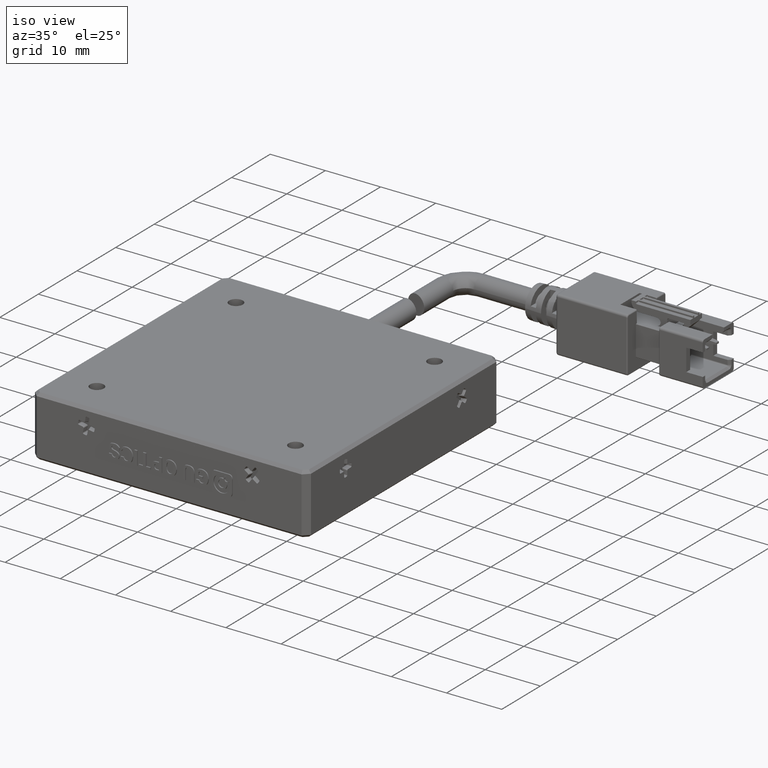
[diagram: clean part render]
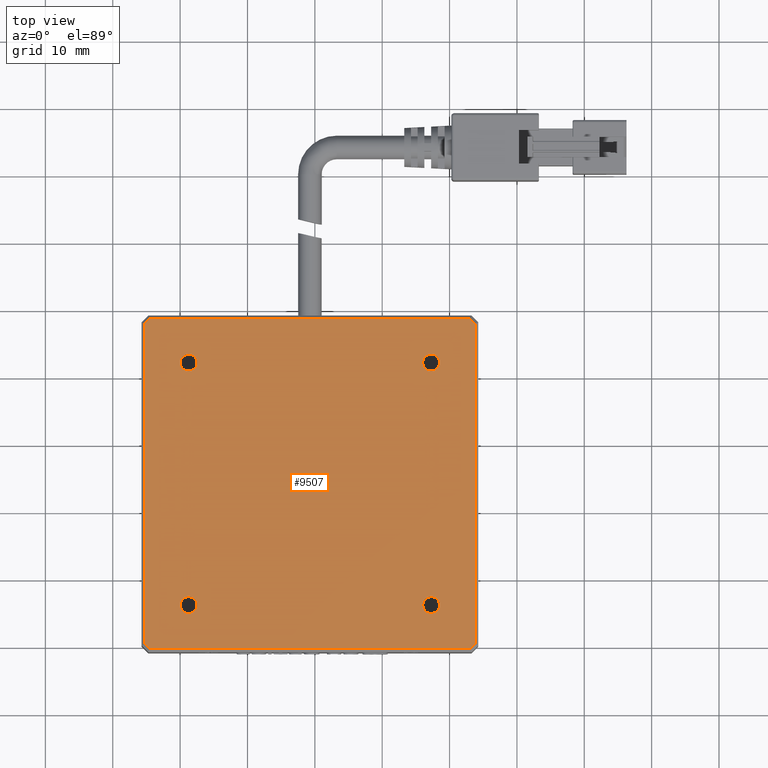
[diagram: tour spotlight — one face highlighted and labeled with its STEP entity id]
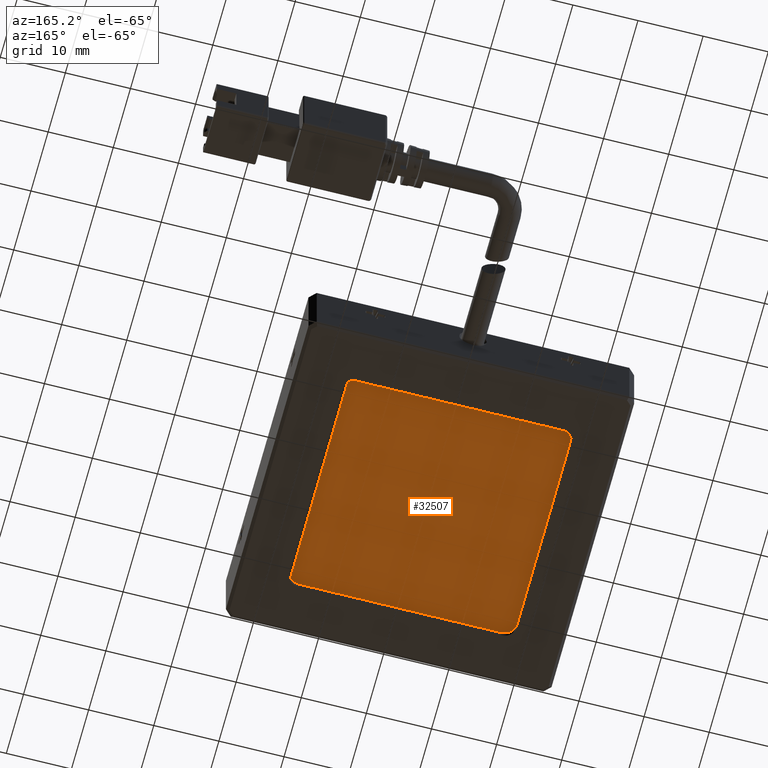
[diagram: tour spotlight — one face highlighted and labeled with its STEP entity id]
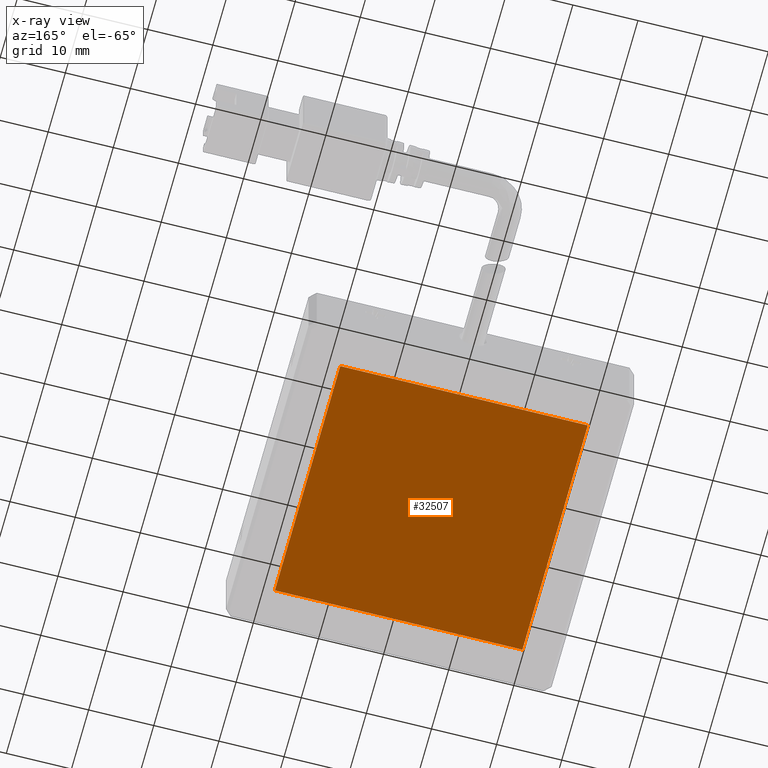
[diagram: x-ray of the same camera — body ghosted, this tour face saturated]
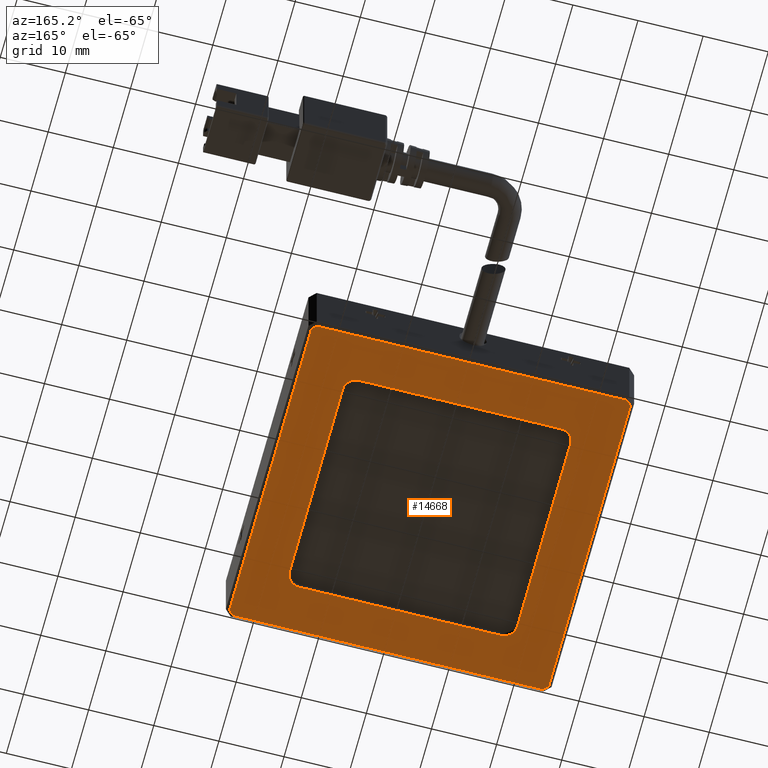
[diagram: tour spotlight — one face highlighted and labeled with its STEP entity id]
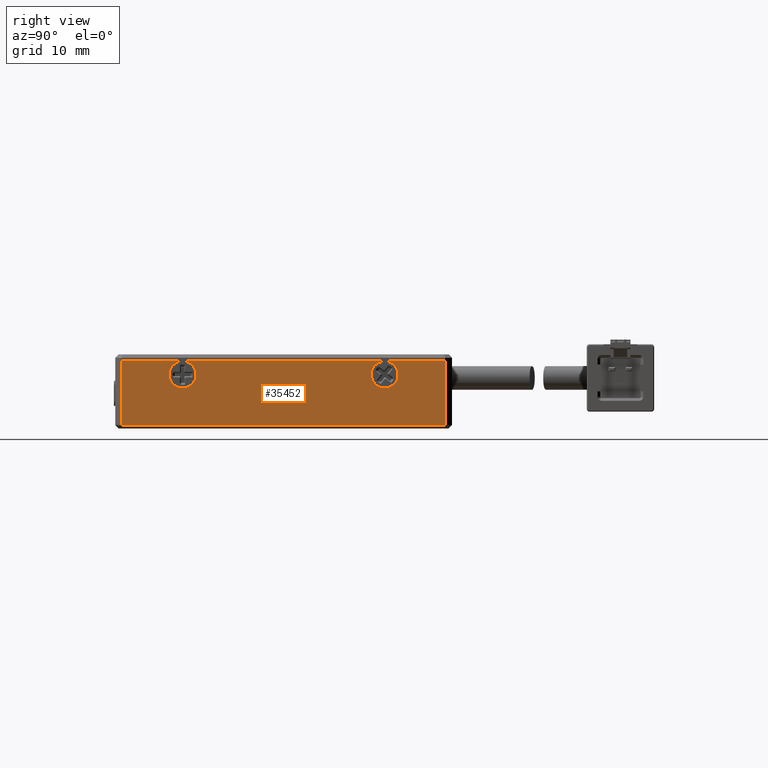
[diagram: tour spotlight — one face highlighted and labeled with its STEP entity id]
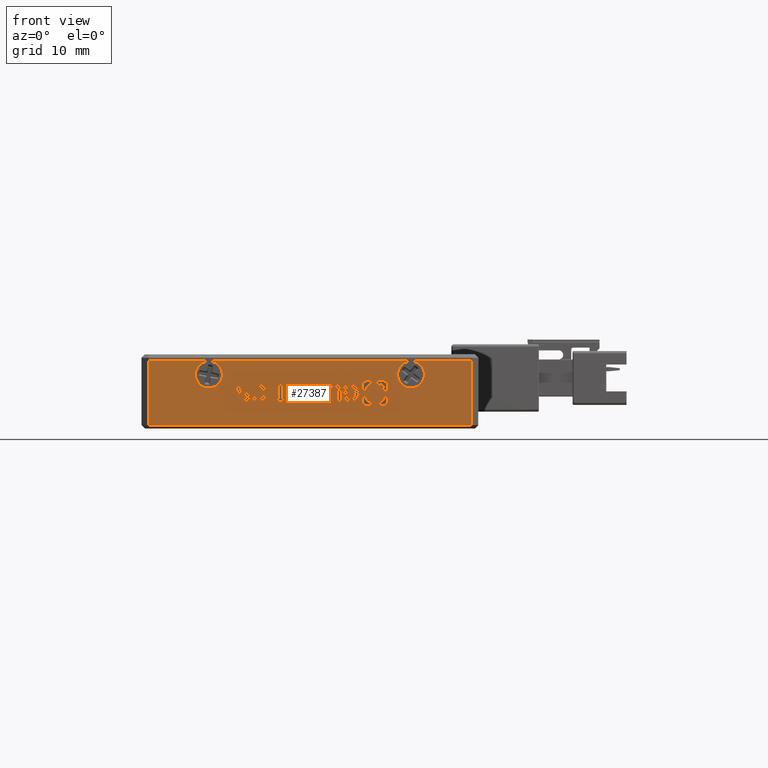
[diagram: tour spotlight — one face highlighted and labeled with its STEP entity id]
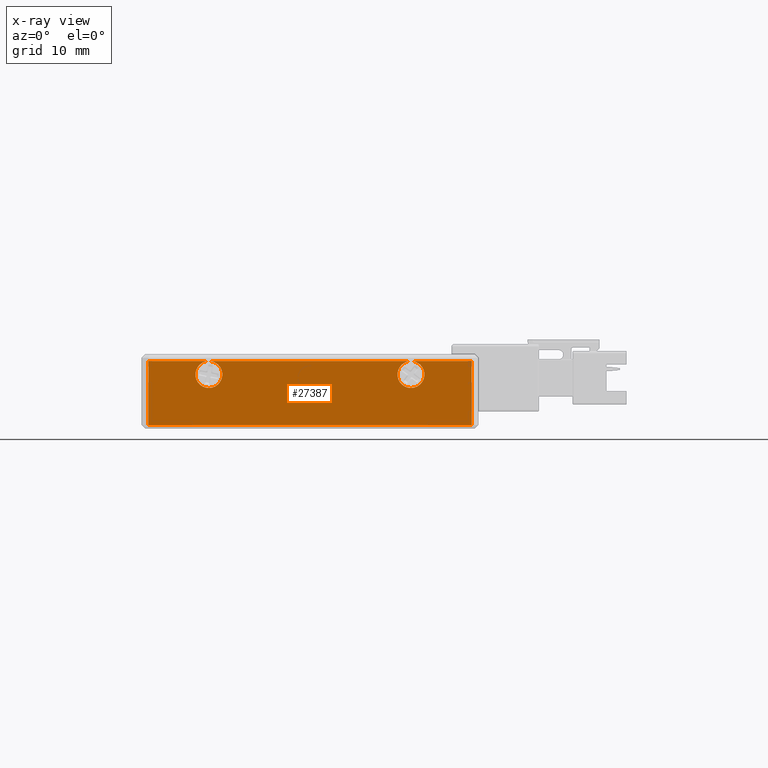
[diagram: x-ray of the same camera — body ghosted, this tour face saturated]
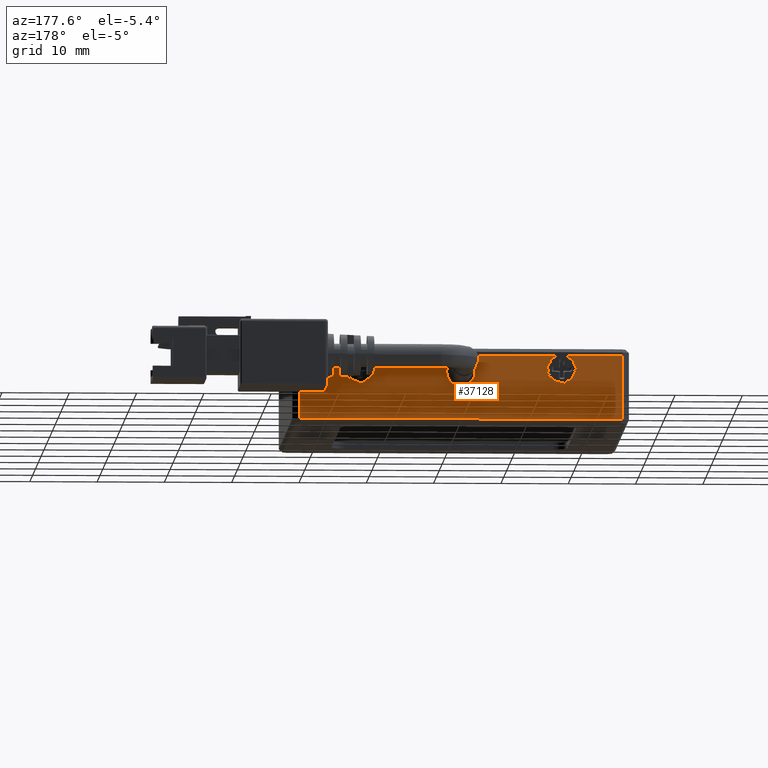
[diagram: tour spotlight — one face highlighted and labeled with its STEP entity id]
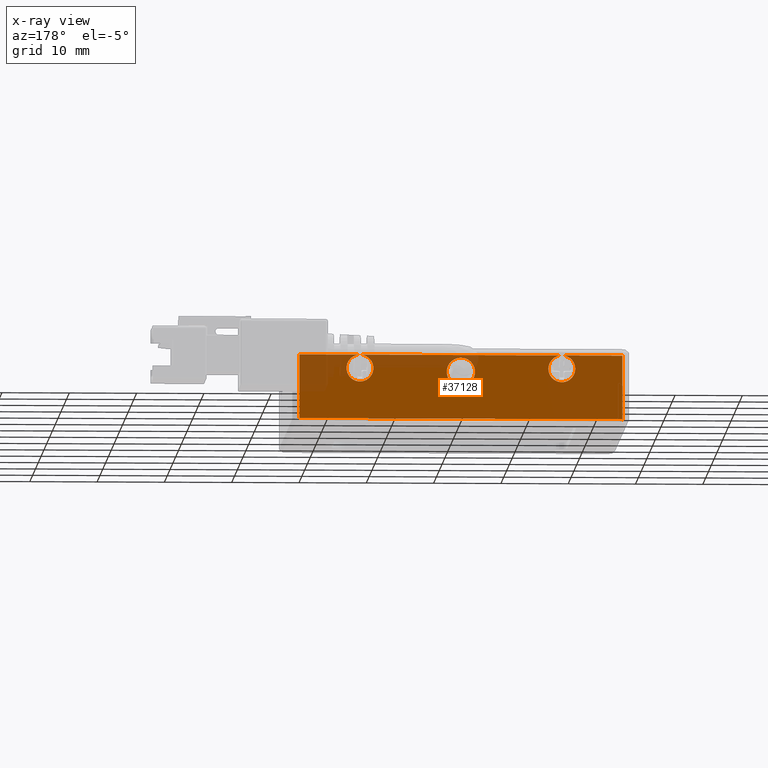
[diagram: x-ray of the same camera — body ghosted, this tour face saturated]
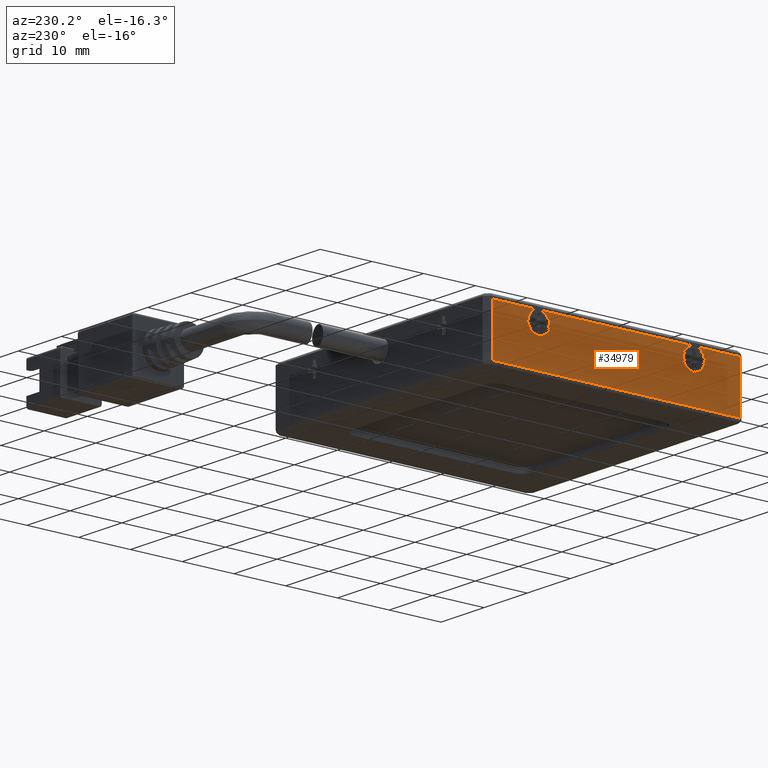
[diagram: tour spotlight — one face highlighted and labeled with its STEP entity id]
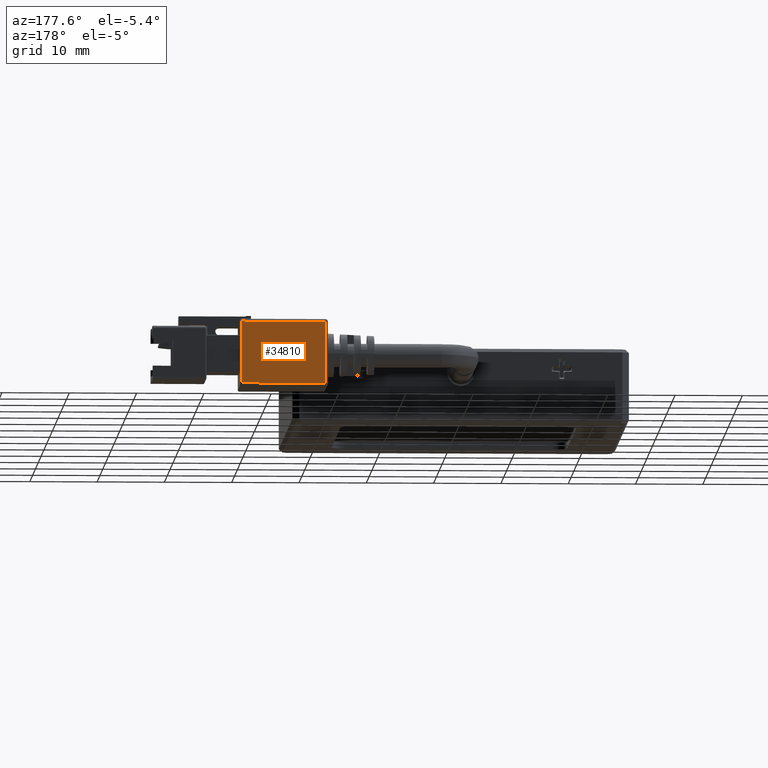
[diagram: tour spotlight — one face highlighted and labeled with its STEP entity id]
A machine part: a face-by-face anatomy tour. The part has 955 B-rep faces; the first image is the clean iso view, then the 8 largest visible faces are spotlighted one at a time (largest first), each with its STEP entity span.

Face 1 — top view, entity #9507. In plain terms, the highlighted planar face has unit normal (0, 0, -1).
Definition (entity closure, byte-faithful):
#337 = EDGE_LOOP ( 'NONE', ( #27908, #27059 ) ) ;
#1059 = VERTEX_POINT ( 'NONE', #13351 ) ;
#1830 = DIRECTION ( 'NONE',  ( -0.0000000000000000000, -0.0000000000000000000, 1.000000000000000000 ) ) ;
#2167 = CARTESIAN_POINT ( 'NONE',  ( 0.01702531645570923300, 32.21113924050634100, 2.250000000000000900 ) ) ;
#2496 = VERTEX_POINT ( 'NONE', #25854 ) ;
#2866 = VERTEX_POINT ( 'NONE', #20250 ) ;
#2881 = CARTESIAN_POINT ( 'NONE',  ( 1.267025316455710400, -3.788860759493669000, 2.250000000000000900 ) ) ;
#3986 = VECTOR ( 'NONE', #5769, 1000.000000000000000 ) ;
#4283 = CIRCLE ( 'NONE', #8316, 1.250000000000001100 ) ;
#4327 = VERTEX_POINT ( 'NONE', #18941 ) ;
#4333 = LINE ( 'NONE', #7408, #8872 ) ;
#4512 = EDGE_LOOP ( 'NONE', ( #9922, #37835 ) ) ;
#4529 = CARTESIAN_POINT ( 'NONE',  ( 2.517025316455704600, 32.21113924050634100, 2.250000000000000900 ) ) ;
#4711 = CARTESIAN_POINT ( 'NONE',  ( 36.01702531645571500, 32.21113924050634100, 2.250000000000000900 ) ) ;
#5043 = CARTESIAN_POINT ( 'NONE',  ( -4.525867902357729700, -10.28886075949365000, 2.250000000000000900 ) ) ;
#5317 = VERTEX_POINT ( 'NONE', #23615 ) ;
#5769 = DIRECTION ( 'NONE',  ( -0.0000000000000000000, -1.000000000000000000, -0.0000000000000000000 ) ) ;
#6154 = DIRECTION ( 'NONE',  ( 1.000000000000000000, 0.0000000000000000000, 0.0000000000000000000 ) ) ;
#6341 = ORIENTED_EDGE ( 'NONE', *, *, #28220, .F. ) ;
#6431 = CARTESIAN_POINT ( 'NONE',  ( 37.26702531645571500, -3.788860759493665900, 2.250000000000000900 ) ) ;
#6482 = VERTEX_POINT ( 'NONE', #35162 ) ;
#6829 = CARTESIAN_POINT ( 'NONE',  ( 43.05991853526914800, 38.71113924050632000, 2.250000000000000900 ) ) ;
#6996 = AXIS2_PLACEMENT_3D ( 'NONE', #6431, #29046, #9641 ) ;
#7125 = AXIS2_PLACEMENT_3D ( 'NONE', #27018, #7691, #30302 ) ;
#7372 = CIRCLE ( 'NONE', #6996, 1.250000000000001100 ) ;
#7408 = CARTESIAN_POINT ( 'NONE',  ( 19.26702531645571500, -10.28886075949365300, 2.250000000000000900 ) ) ;
#7457 = DIRECTION ( 'NONE',  ( 0.0000000000000000000, 1.000000000000000000, 0.0000000000000000000 ) ) ;
#7634 = VECTOR ( 'NONE', #7457, 1000.000000000000000 ) ;
#7691 = DIRECTION ( 'NONE',  ( -0.0000000000000000000, -0.0000000000000000000, 1.000000000000000000 ) ) ;
#8046 = DIRECTION ( 'NONE',  ( -0.0000000000000000000, -0.0000000000000000000, 1.000000000000000000 ) ) ;
#8273 = AXIS2_PLACEMENT_3D ( 'NONE', #34367, #14981, #37665 ) ;
#8316 = AXIS2_PLACEMENT_3D ( 'NONE', #28336, #8930, #31606 ) ;
#8598 = EDGE_CURVE ( 'NONE', #1059, #38405, #33128, .T. ) ;
#8872 = VECTOR ( 'NONE', #23776, 1000.000000000000000 ) ;
#8920 = VERTEX_POINT ( 'NONE', #4529 ) ;
#8930 = DIRECTION ( 'NONE',  ( -0.0000000000000000000, -0.0000000000000000000, 1.000000000000000000 ) ) ;
#9021 = CARTESIAN_POINT ( 'NONE',  ( 43.76702531645570800, 14.21113924050633600, 2.250000000000000900 ) ) ;
#9507 = ADVANCED_FACE ( 'NONE', ( #37916, #21620, #29249, #20640, #13042 ), #21045, .F. ) ;
#9545 = ORIENTED_EDGE ( 'NONE', *, *, #16543, .F. ) ;
#9641 = DIRECTION ( 'NONE',  ( 1.000000000000000000, 0.0000000000000000000, 0.0000000000000000000 ) ) ;
#9922 = ORIENTED_EDGE ( 'NONE', *, *, #28721, .F. ) ;
#10042 = DIRECTION ( 'NONE',  ( 0.7071067811865441300, -0.7071067811865510100, 0.0000000000000000000 ) ) ;
#10991 = EDGE_LOOP ( 'NONE', ( #6341, #25536, #40060, #13935, #17538, #14464, #9545, #35034 ) ) ;
#11698 = CARTESIAN_POINT ( 'NONE',  ( 19.26702531645571500, 38.71113924050632000, 2.250000000000000900 ) ) ;
#12761 = EDGE_CURVE ( 'NONE', #38405, #1059, #7372, .T. ) ;
#12924 = CARTESIAN_POINT ( 'NONE',  ( -4.525867902357719100, 38.71113924050632000, 2.250000000000000000 ) ) ;
#13042 = FACE_BOUND ( 'NONE', #337, .T. ) ;
#13351 = CARTESIAN_POINT ( 'NONE',  ( 36.01702531645571500, -3.788860759493665900, 2.250000000000000900 ) ) ;
#13439 = ORIENTED_EDGE ( 'NONE', *, *, #35212, .F. ) ;
#13935 = ORIENTED_EDGE ( 'NONE', *, *, #15080, .F. ) ;
#14015 = CARTESIAN_POINT ( 'NONE',  ( 43.76702531645570800, 38.00403245931975200, 2.250000000000001800 ) ) ;
#14464 = ORIENTED_EDGE ( 'NONE', *, *, #38959, .F. ) ;
#14679 = LINE ( 'NONE', #6829, #39560 ) ;
#14793 = CARTESIAN_POINT ( 'NONE',  ( -5.232974683544267900, 38.00403245931977400, 2.250000000000000000 ) ) ;
#14981 = DIRECTION ( 'NONE',  ( 0.0000000000000000000, 0.0000000000000000000, -1.000000000000000000 ) ) ;
#14999 = DIRECTION ( 'NONE',  ( 1.000000000000000000, -0.0000000000000000000, 0.0000000000000000000 ) ) ;
#15080 = EDGE_CURVE ( 'NONE', #29706, #22640, #38493, .T. ) ;
#15087 = EDGE_LOOP ( 'NONE', ( #32442, #15752 ) ) ;
#15174 = DIRECTION ( 'NONE',  ( -0.7071067811865441300, 0.7071067811865510100, 0.0000000000000000000 ) ) ;
#15752 = ORIENTED_EDGE ( 'NONE', *, *, #8598, .F. ) ;
#15786 = EDGE_CURVE ( 'NONE', #5317, #2496, #27651, .T. ) ;
#16189 = EDGE_CURVE ( 'NONE', #8920, #25231, #41979, .T. ) ;
#16234 = VECTOR ( 'NONE', #14999, 1000.000000000000000 ) ;
#16524 = CARTESIAN_POINT ( 'NONE',  ( 1.267025316455706800, 32.21113924050634100, 2.250000000000000900 ) ) ;
#16543 = EDGE_CURVE ( 'NONE', #26397, #34858, #17946, .T. ) ;
#16833 = VERTEX_POINT ( 'NONE', #17292 ) ;
#16966 = VECTOR ( 'NONE', #38125, 1000.000000000000000 ) ;
#17075 = CIRCLE ( 'NONE', #29142, 1.250000000000001100 ) ;
#17292 = CARTESIAN_POINT ( 'NONE',  ( 43.05991853526914800, 38.71113924050632000, 2.250000000000001800 ) ) ;
#17538 = ORIENTED_EDGE ( 'NONE', *, *, #24282, .F. ) ;
#17946 = LINE ( 'NONE', #21693, #26543 ) ;
#18293 = EDGE_CURVE ( 'NONE', #2866, #26397, #24784, .T. ) ;
#18941 = CARTESIAN_POINT ( 'NONE',  ( 43.05991853526914100, -10.28886075949365300, 2.250000000000000000 ) ) ;
#19114 = CARTESIAN_POINT ( 'NONE',  ( 37.26702531645571500, -3.788860759493665900, 2.250000000000000900 ) ) ;
#19764 = DIRECTION ( 'NONE',  ( 1.000000000000000000, 0.0000000000000000000, 0.0000000000000000000 ) ) ;
#19944 = EDGE_CURVE ( 'NONE', #25231, #8920, #38231, .T. ) ;
#20053 = ORIENTED_EDGE ( 'NONE', *, *, #36254, .F. ) ;
#20250 = CARTESIAN_POINT ( 'NONE',  ( -5.232974683544267900, -9.581753978307105500, 2.250000000000001800 ) ) ;
#20307 = LINE ( 'NONE', #34533, #37582 ) ;
#20640 = FACE_BOUND ( 'NONE', #41360, .T. ) ;
#20862 = CARTESIAN_POINT ( 'NONE',  ( 43.76702531645570800, -9.581753978307098400, 2.250000000000000000 ) ) ;
#21045 = PLANE ( 'NONE',  #8273 ) ;
#21244 = CARTESIAN_POINT ( 'NONE',  ( 37.26702531645571500, 32.21113924050634100, 2.250000000000000900 ) ) ;
#21620 = FACE_BOUND ( 'NONE', #4512, .T. ) ;
#21693 = CARTESIAN_POINT ( 'NONE',  ( -5.232974683544267900, 38.00403245931977400, 2.250000000000000900 ) ) ;
#21819 = DIRECTION ( 'NONE',  ( 0.7071067811865510100, 0.7071067811865441300, 0.0000000000000000000 ) ) ;
#22291 = AXIS2_PLACEMENT_3D ( 'NONE', #16524, #39204, #19764 ) ;
#22334 = DIRECTION ( 'NONE',  ( 1.000000000000000000, 0.0000000000000000000, 0.0000000000000000000 ) ) ;
#22640 = VERTEX_POINT ( 'NONE', #20862 ) ;
#23615 = CARTESIAN_POINT ( 'NONE',  ( 0.01702531645570923300, -3.788860759493669000, 2.250000000000000900 ) ) ;
#23776 = DIRECTION ( 'NONE',  ( -1.000000000000000000, 0.0000000000000000000, -0.0000000000000000000 ) ) ;
#24282 = EDGE_CURVE ( 'NONE', #16833, #29706, #14679, .T. ) ;
#24452 = AXIS2_PLACEMENT_3D ( 'NONE', #27397, #8046, #30662 ) ;
#24484 = DIRECTION ( 'NONE',  ( 1.000000000000000000, 0.0000000000000000000, 0.0000000000000000000 ) ) ;
#24784 = LINE ( 'NONE', #36491, #7634 ) ;
#25231 = VERTEX_POINT ( 'NONE', #2167 ) ;
#25501 = DIRECTION ( 'NONE',  ( -0.0000000000000000000, -0.0000000000000000000, 1.000000000000000000 ) ) ;
#25536 = ORIENTED_EDGE ( 'NONE', *, *, #29696, .F. ) ;
#25547 = LINE ( 'NONE', #34825, #16966 ) ;
#25639 = VERTEX_POINT ( 'NONE', #4711 ) ;
#25854 = CARTESIAN_POINT ( 'NONE',  ( 2.517025316455711300, -3.788860759493669000, 2.250000000000000900 ) ) ;
#26397 = VERTEX_POINT ( 'NONE', #14793 ) ;
#26543 = VECTOR ( 'NONE', #21819, 999.9999999999998900 ) ;
#27018 = CARTESIAN_POINT ( 'NONE',  ( 1.267025316455706800, 32.21113924050634100, 2.250000000000000900 ) ) ;
#27059 = ORIENTED_EDGE ( 'NONE', *, *, #19944, .F. ) ;
#27397 = CARTESIAN_POINT ( 'NONE',  ( 1.267025316455710400, -3.788860759493669000, 2.250000000000000900 ) ) ;
#27651 = CIRCLE ( 'NONE', #33485, 1.250000000000001100 ) ;
#27908 = ORIENTED_EDGE ( 'NONE', *, *, #16189, .F. ) ;
#28220 = EDGE_CURVE ( 'NONE', #37119, #2866, #20307, .T. ) ;
#28336 = CARTESIAN_POINT ( 'NONE',  ( 37.26702531645571500, 32.21113924050634100, 2.250000000000000900 ) ) ;
#28721 = EDGE_CURVE ( 'NONE', #2496, #5317, #41110, .T. ) ;
#29046 = DIRECTION ( 'NONE',  ( -0.0000000000000000000, -0.0000000000000000000, 1.000000000000000000 ) ) ;
#29142 = AXIS2_PLACEMENT_3D ( 'NONE', #21244, #1830, #24484 ) ;
#29249 = FACE_BOUND ( 'NONE', #15087, .T. ) ;
#29696 = EDGE_CURVE ( 'NONE', #4327, #37119, #4333, .T. ) ;
#29706 = VERTEX_POINT ( 'NONE', #14015 ) ;
#29792 = EDGE_CURVE ( 'NONE', #22640, #4327, #25547, .T. ) ;
#30302 = DIRECTION ( 'NONE',  ( 1.000000000000000000, 0.0000000000000000000, 0.0000000000000000000 ) ) ;
#30662 = DIRECTION ( 'NONE',  ( 1.000000000000000000, 0.0000000000000000000, 0.0000000000000000000 ) ) ;
#31606 = DIRECTION ( 'NONE',  ( 1.000000000000000000, 0.0000000000000000000, 0.0000000000000000000 ) ) ;
#32442 = ORIENTED_EDGE ( 'NONE', *, *, #12761, .F. ) ;
#33128 = CIRCLE ( 'NONE', #40049, 1.250000000000001100 ) ;
#33485 = AXIS2_PLACEMENT_3D ( 'NONE', #2881, #25501, #6154 ) ;
#34367 = CARTESIAN_POINT ( 'NONE',  ( 19.26702531645571500, 14.21113924050633600, 2.250000000000000900 ) ) ;
#34533 = CARTESIAN_POINT ( 'NONE',  ( -4.525867902357726200, -10.28886075949365300, 2.250000000000000900 ) ) ;
#34825 = CARTESIAN_POINT ( 'NONE',  ( 43.76702531645570800, -9.581753978307098400, 2.250000000000000900 ) ) ;
#34858 = VERTEX_POINT ( 'NONE', #12924 ) ;
#35034 = ORIENTED_EDGE ( 'NONE', *, *, #18293, .F. ) ;
#35162 = CARTESIAN_POINT ( 'NONE',  ( 38.51702531645572200, 32.21113924050634100, 2.250000000000000900 ) ) ;
#35212 = EDGE_CURVE ( 'NONE', #6482, #25639, #17075, .T. ) ;
#36254 = EDGE_CURVE ( 'NONE', #25639, #6482, #4283, .T. ) ;
#36491 = CARTESIAN_POINT ( 'NONE',  ( -5.232974683544267900, 14.21113924050633600, 2.250000000000000900 ) ) ;
#37119 = VERTEX_POINT ( 'NONE', #5043 ) ;
#37582 = VECTOR ( 'NONE', #15174, 999.9999999999998900 ) ;
#37665 = DIRECTION ( 'NONE',  ( -1.000000000000000000, 0.0000000000000000000, -0.0000000000000000000 ) ) ;
#37835 = ORIENTED_EDGE ( 'NONE', *, *, #15786, .F. ) ;
#37916 = FACE_OUTER_BOUND ( 'NONE', #10991, .T. ) ;
#38125 = DIRECTION ( 'NONE',  ( -0.7071067811865510100, -0.7071067811865441300, 0.0000000000000000000 ) ) ;
#38231 = CIRCLE ( 'NONE', #7125, 1.249999999999997600 ) ;
#38405 = VERTEX_POINT ( 'NONE', #40492 ) ;
#38493 = LINE ( 'NONE', #9021, #3986 ) ;
#38959 = EDGE_CURVE ( 'NONE', #34858, #16833, #42180, .T. ) ;
#39204 = DIRECTION ( 'NONE',  ( -0.0000000000000000000, -0.0000000000000000000, 1.000000000000000000 ) ) ;
#39560 = VECTOR ( 'NONE', #10042, 1000.000000000000000 ) ;
#40049 = AXIS2_PLACEMENT_3D ( 'NONE', #19114, #41907, #22334 ) ;
#40060 = ORIENTED_EDGE ( 'NONE', *, *, #29792, .F. ) ;
#40492 = CARTESIAN_POINT ( 'NONE',  ( 38.51702531645572200, -3.788860759493665900, 2.250000000000000900 ) ) ;
#41110 = CIRCLE ( 'NONE', #24452, 1.250000000000001100 ) ;
#41360 = EDGE_LOOP ( 'NONE', ( #13439, #20053 ) ) ;
#41907 = DIRECTION ( 'NONE',  ( -0.0000000000000000000, -0.0000000000000000000, 1.000000000000000000 ) ) ;
#41979 = CIRCLE ( 'NONE', #22291, 1.249999999999997600 ) ;
#42180 = LINE ( 'NONE', #11698, #16234 ) ;

Face 2 — auxiliary view, entity #32507. An x-ray twin of the same camera follows (body ghosted, this face saturated) — the face is partly hidden behind the body. In plain terms, the highlighted planar face has unit normal (0, 0, -1).
Definition (entity closure, byte-faithful):
#3887 = CARTESIAN_POINT ( 'NONE',  ( -0.06796260940836185100, -5.288860759493659600, -7.549999999999995400 ) ) ;
#4757 = EDGE_LOOP ( 'NONE', ( #10546, #40520, #15649, #6851 ) ) ;
#5116 = LINE ( 'NONE', #8988, #38600 ) ;
#5233 = CARTESIAN_POINT ( 'NONE',  ( 37.93203739059163800, -5.288860759493659600, -7.549999999999995400 ) ) ;
#5962 = VECTOR ( 'NONE', #39128, 1000.000000000000000 ) ;
#6851 = ORIENTED_EDGE ( 'NONE', *, *, #28417, .T. ) ;
#7595 = EDGE_CURVE ( 'NONE', #40718, #10598, #39438, .T. ) ;
#7703 = CARTESIAN_POINT ( 'NONE',  ( -0.06796260940836185100, -5.288860759493659600, -7.549999999999995400 ) ) ;
#8988 = CARTESIAN_POINT ( 'NONE',  ( -0.06796260940836185100, 32.71113924050633400, -7.549999999999995400 ) ) ;
#10546 = ORIENTED_EDGE ( 'NONE', *, *, #30546, .T. ) ;
#10598 = VERTEX_POINT ( 'NONE', #5233 ) ;
#12230 = DIRECTION ( 'NONE',  ( 1.000000000000000000, 0.0000000000000000000, 0.0000000000000000000 ) ) ;
#13943 = CARTESIAN_POINT ( 'NONE',  ( 37.93203739059163800, 32.71113924050633400, -7.549999999999995400 ) ) ;
#15649 = ORIENTED_EDGE ( 'NONE', *, *, #7595, .T. ) ;
#15918 = CARTESIAN_POINT ( 'NONE',  ( -0.06796260940836185100, 32.71113924050633400, -7.549999999999995400 ) ) ;
#17945 = DIRECTION ( 'NONE',  ( 0.0000000000000000000, 0.0000000000000000000, -1.000000000000000000 ) ) ;
#18017 = EDGE_CURVE ( 'NONE', #21179, #40718, #5116, .T. ) ;
#18749 = VECTOR ( 'NONE', #35383, 1000.000000000000000 ) ;
#21179 = VERTEX_POINT ( 'NONE', #15918 ) ;
#23212 = DIRECTION ( 'NONE',  ( -0.0000000000000000000, 1.000000000000000000, 0.0000000000000000000 ) ) ;
#24315 = PLANE ( 'NONE',  #27946 ) ;
#27946 = AXIS2_PLACEMENT_3D ( 'NONE', #37409, #17945, #40735 ) ;
#28384 = LINE ( 'NONE', #32143, #18749 ) ;
#28417 = EDGE_CURVE ( 'NONE', #10598, #33499, #28384, .T. ) ;
#28954 = FACE_OUTER_BOUND ( 'NONE', #4757, .T. ) ;
#30546 = EDGE_CURVE ( 'NONE', #33499, #21179, #33114, .T. ) ;
#32143 = CARTESIAN_POINT ( 'NONE',  ( -0.06796260940836185100, -5.288860759493659600, -7.549999999999995400 ) ) ;
#32507 = ADVANCED_FACE ( 'NONE', ( #28954 ), #24315, .T. ) ;
#33114 = LINE ( 'NONE', #3887, #40790 ) ;
#33499 = VERTEX_POINT ( 'NONE', #7703 ) ;
#35383 = DIRECTION ( 'NONE',  ( -1.000000000000000000, -0.0000000000000000000, 0.0000000000000000000 ) ) ;
#37409 = CARTESIAN_POINT ( 'NONE',  ( 18.93203739059163800, 13.71113924050633900, -7.549999999999995400 ) ) ;
#38600 = VECTOR ( 'NONE', #12230, 1000.000000000000000 ) ;
#39128 = DIRECTION ( 'NONE',  ( -0.0000000000000000000, -1.000000000000000000, 0.0000000000000000000 ) ) ;
#39275 = CARTESIAN_POINT ( 'NONE',  ( 37.93203739059163800, -5.288860759493659600, -7.549999999999995400 ) ) ;
#39438 = LINE ( 'NONE', #39275, #5962 ) ;
#40520 = ORIENTED_EDGE ( 'NONE', *, *, #18017, .T. ) ;
#40718 = VERTEX_POINT ( 'NONE', #13943 ) ;
#40735 = DIRECTION ( 'NONE',  ( -1.000000000000000000, 0.0000000000000000000, -0.0000000000000000000 ) ) ;
#40790 = VECTOR ( 'NONE', #23212, 1000.000000000000000 ) ;

Face 3 — auxiliary view, entity #14668. In plain terms, the highlighted planar face has unit normal (0, 0, -1).
Definition (entity closure, byte-faithful):
#246 = CARTESIAN_POINT ( 'NONE',  ( 43.76702531645572200, 38.00403245931980900, -8.750000000000003600 ) ) ;
#957 = DIRECTION ( 'NONE',  ( -0.7071067811865441300, 0.7071067811865510100, 0.0000000000000000000 ) ) ;
#1234 = DIRECTION ( 'NONE',  ( 0.0000000000000000000, 1.000000000000000000, 0.0000000000000000000 ) ) ;
#1529 = DIRECTION ( 'NONE',  ( -0.0000000000000000000, -0.0000000000000000000, 1.000000000000000000 ) ) ;
#2092 = DIRECTION ( 'NONE',  ( 0.0000000000000000000, 1.000000000000000000, 0.0000000000000000000 ) ) ;
#2134 = EDGE_CURVE ( 'NONE', #14970, #25319, #13035, .T. ) ;
#2226 = VERTEX_POINT ( 'NONE', #40758 ) ;
#2696 = VECTOR ( 'NONE', #39601, 1000.000000000000000 ) ;
#2795 = ORIENTED_EDGE ( 'NONE', *, *, #2924, .T. ) ;
#2924 = EDGE_CURVE ( 'NONE', #27432, #18207, #6853, .T. ) ;
#2942 = EDGE_LOOP ( 'NONE', ( #5551, #38578, #2795, #18024, #18510, #17987, #26224, #33266 ) ) ;
#3007 = CARTESIAN_POINT ( 'NONE',  ( 34.76702531645571500, -1.288860759493677400, -8.750000000000000000 ) ) ;
#3650 = CIRCLE ( 'NONE', #8417, 2.000000000000001800 ) ;
#3900 = VERTEX_POINT ( 'NONE', #29055 ) ;
#4001 = CARTESIAN_POINT ( 'NONE',  ( -5.232974683544277600, 38.00403245931978100, -8.750000000000000000 ) ) ;
#4225 = VERTEX_POINT ( 'NONE', #24897 ) ;
#4538 = AXIS2_PLACEMENT_3D ( 'NONE', #29136, #9722, #32439 ) ;
#5551 = ORIENTED_EDGE ( 'NONE', *, *, #13187, .T. ) ;
#5867 = DIRECTION ( 'NONE',  ( -0.0000000000000000000, -0.0000000000000000000, 1.000000000000000000 ) ) ;
#6027 = VERTEX_POINT ( 'NONE', #16787 ) ;
#6285 = DIRECTION ( 'NONE',  ( -1.000000000000000000, 0.0000000000000000000, 0.0000000000000000000 ) ) ;
#6495 = CARTESIAN_POINT ( 'NONE',  ( 43.76702531645572200, -9.581753978307132200, -8.750000000000000000 ) ) ;
#6853 = LINE ( 'NONE', #20796, #23008 ) ;
#6868 = CARTESIAN_POINT ( 'NONE',  ( 43.76702531645572200, -9.581753978307132200, -8.750000000000000000 ) ) ;
#7057 = ORIENTED_EDGE ( 'NONE', *, *, #27955, .T. ) ;
#7116 = CARTESIAN_POINT ( 'NONE',  ( -5.232974683544277600, -9.581753978307125100, -8.750000000000000000 ) ) ;
#7261 = CARTESIAN_POINT ( 'NONE',  ( 19.26702531645572200, 14.21113924050632300, -8.750000000000000000 ) ) ;
#7358 = VERTEX_POINT ( 'NONE', #18159 ) ;
#7441 = EDGE_LOOP ( 'NONE', ( #18462, #16169, #31747, #7057, #36938, #28291, #20520, #10772 ) ) ;
#8322 = EDGE_CURVE ( 'NONE', #3900, #14970, #25004, .T. ) ;
#8417 = AXIS2_PLACEMENT_3D ( 'NONE', #3007, #25638, #6285 ) ;
#9722 = DIRECTION ( 'NONE',  ( -0.0000000000000000000, -0.0000000000000000000, 1.000000000000000000 ) ) ;
#10462 = DIRECTION ( 'NONE',  ( -1.000000000000000000, 0.0000000000000000000, -0.0000000000000000000 ) ) ;
#10772 = ORIENTED_EDGE ( 'NONE', *, *, #2134, .T. ) ;
#10855 = CARTESIAN_POINT ( 'NONE',  ( 19.26702531645572200, -3.288860759493677400, -8.750000000000000000 ) ) ;
#13035 = CIRCLE ( 'NONE', #22271, 2.000000000000000000 ) ;
#13174 = CARTESIAN_POINT ( 'NONE',  ( 34.76702531645571500, -3.288860759493677400, -8.750000000000000000 ) ) ;
#13187 = EDGE_CURVE ( 'NONE', #14654, #7358, #16396, .T. ) ;
#13389 = EDGE_CURVE ( 'NONE', #29663, #3900, #35619, .T. ) ;
#13592 = PLANE ( 'NONE',  #38344 ) ;
#13634 = VERTEX_POINT ( 'NONE', #15966 ) ;
#13720 = EDGE_CURVE ( 'NONE', #37971, #32769, #13748, .T. ) ;
#13748 = LINE ( 'NONE', #30243, #38614 ) ;
#14082 = EDGE_CURVE ( 'NONE', #32769, #6027, #38097, .T. ) ;
#14134 = VECTOR ( 'NONE', #15735, 1000.000000000000000 ) ;
#14654 = VERTEX_POINT ( 'NONE', #7116 ) ;
#14668 = ADVANCED_FACE ( 'NONE', ( #34456, #24793 ), #13592, .T. ) ;
#14970 = VERTEX_POINT ( 'NONE', #34386 ) ;
#15144 = LINE ( 'NONE', #40173, #40024 ) ;
#15621 = VECTOR ( 'NONE', #33561, 1000.000000000000000 ) ;
#15735 = DIRECTION ( 'NONE',  ( -0.0000000000000000000, -1.000000000000000000, -0.0000000000000000000 ) ) ;
#15966 = CARTESIAN_POINT ( 'NONE',  ( -4.525867902357740400, -10.28886075949366900, -8.750000000000000000 ) ) ;
#16169 = ORIENTED_EDGE ( 'NONE', *, *, #33275, .T. ) ;
#16396 = LINE ( 'NONE', #41041, #24965 ) ;
#16560 = LINE ( 'NONE', #40175, #41505 ) ;
#16787 = CARTESIAN_POINT ( 'NONE',  ( 43.05991853526920500, -10.28886075949366600, -8.750000000000003600 ) ) ;
#17987 = ORIENTED_EDGE ( 'NONE', *, *, #14082, .T. ) ;
#18024 = ORIENTED_EDGE ( 'NONE', *, *, #23131, .T. ) ;
#18159 = CARTESIAN_POINT ( 'NONE',  ( -5.232974683544277600, 38.00403245931980200, -8.749999999999998200 ) ) ;
#18207 = VERTEX_POINT ( 'NONE', #19580 ) ;
#18462 = ORIENTED_EDGE ( 'NONE', *, *, #18531, .T. ) ;
#18510 = ORIENTED_EDGE ( 'NONE', *, *, #13720, .T. ) ;
#18531 = EDGE_CURVE ( 'NONE', #25319, #38779, #31372, .T. ) ;
#18815 = EDGE_CURVE ( 'NONE', #4225, #36379, #40528, .T. ) ;
#19580 = CARTESIAN_POINT ( 'NONE',  ( 43.05991853526919800, 38.71113924050632700, -8.749999999999998200 ) ) ;
#19667 = CARTESIAN_POINT ( 'NONE',  ( 1.767025316455714400, -1.288860759493677400, -8.750000000000000000 ) ) ;
#19924 = LINE ( 'NONE', #4001, #2696 ) ;
#20520 = ORIENTED_EDGE ( 'NONE', *, *, #8322, .T. ) ;
#20796 = CARTESIAN_POINT ( 'NONE',  ( 19.26702531645572200, 38.71113924050632700, -8.750000000000000000 ) ) ;
#20931 = AXIS2_PLACEMENT_3D ( 'NONE', #25240, #5867, #28512 ) ;
#20949 = CARTESIAN_POINT ( 'NONE',  ( 3.767025316455714400, 29.71113924050632300, -8.750000000000000000 ) ) ;
#21346 = EDGE_CURVE ( 'NONE', #7358, #27432, #19924, .T. ) ;
#22271 = AXIS2_PLACEMENT_3D ( 'NONE', #20949, #1529, #24211 ) ;
#22865 = VECTOR ( 'NONE', #957, 999.9999999999998900 ) ;
#23008 = VECTOR ( 'NONE', #33860, 1000.000000000000000 ) ;
#23131 = EDGE_CURVE ( 'NONE', #18207, #37971, #15144, .T. ) ;
#23911 = LINE ( 'NONE', #39868, #22865 ) ;
#24211 = DIRECTION ( 'NONE',  ( -1.000000000000000000, 0.0000000000000000000, 0.0000000000000000000 ) ) ;
#24793 = FACE_OUTER_BOUND ( 'NONE', #2942, .T. ) ;
#24897 = CARTESIAN_POINT ( 'NONE',  ( 3.767025316455714400, -3.288860759493677400, -8.750000000000000000 ) ) ;
#24965 = VECTOR ( 'NONE', #2092, 1000.000000000000000 ) ;
#25004 = LINE ( 'NONE', #40841, #40331 ) ;
#25240 = CARTESIAN_POINT ( 'NONE',  ( 3.767025316455714400, -1.288860759493677400, -8.750000000000000000 ) ) ;
#25319 = VERTEX_POINT ( 'NONE', #38347 ) ;
#25638 = DIRECTION ( 'NONE',  ( -0.0000000000000000000, -0.0000000000000000000, 1.000000000000000000 ) ) ;
#25829 = LINE ( 'NONE', #37977, #33502 ) ;
#26224 = ORIENTED_EDGE ( 'NONE', *, *, #28269, .T. ) ;
#27432 = VERTEX_POINT ( 'NONE', #29101 ) ;
#27955 = EDGE_CURVE ( 'NONE', #36379, #2226, #3650, .T. ) ;
#28269 = EDGE_CURVE ( 'NONE', #6027, #13634, #25829, .T. ) ;
#28291 = ORIENTED_EDGE ( 'NONE', *, *, #13389, .T. ) ;
#28512 = DIRECTION ( 'NONE',  ( -1.000000000000000000, 0.0000000000000000000, 0.0000000000000000000 ) ) ;
#29055 = CARTESIAN_POINT ( 'NONE',  ( 34.76702531645571500, 31.71113924050632300, -8.750000000000000000 ) ) ;
#29101 = CARTESIAN_POINT ( 'NONE',  ( -4.525867902357719100, 38.71113924050632700, -8.750000000000000000 ) ) ;
#29136 = CARTESIAN_POINT ( 'NONE',  ( 34.76702531645571500, 29.71113924050632700, -8.750000000000000000 ) ) ;
#29427 = VECTOR ( 'NONE', #32784, 999.9999999999998900 ) ;
#29663 = VERTEX_POINT ( 'NONE', #30010 ) ;
#29880 = DIRECTION ( 'NONE',  ( 0.0000000000000000000, 0.0000000000000000000, -1.000000000000000000 ) ) ;
#30010 = CARTESIAN_POINT ( 'NONE',  ( 36.76702531645571500, 29.71113924050632700, -8.750000000000000000 ) ) ;
#30243 = CARTESIAN_POINT ( 'NONE',  ( 43.76702531645572200, 14.21113924050632300, -8.750000000000000000 ) ) ;
#30307 = DIRECTION ( 'NONE',  ( 0.7071067811865441300, -0.7071067811865510100, 0.0000000000000000000 ) ) ;
#31372 = LINE ( 'NONE', #34982, #14134 ) ;
#31747 = ORIENTED_EDGE ( 'NONE', *, *, #18815, .T. ) ;
#32399 = EDGE_CURVE ( 'NONE', #13634, #14654, #23911, .T. ) ;
#32439 = DIRECTION ( 'NONE',  ( -1.000000000000000000, 0.0000000000000000000, 0.0000000000000000000 ) ) ;
#32769 = VERTEX_POINT ( 'NONE', #6495 ) ;
#32784 = DIRECTION ( 'NONE',  ( -0.7071067811865510100, -0.7071067811865441300, 0.0000000000000000000 ) ) ;
#33266 = ORIENTED_EDGE ( 'NONE', *, *, #32399, .T. ) ;
#33275 = EDGE_CURVE ( 'NONE', #38779, #4225, #37954, .T. ) ;
#33502 = VECTOR ( 'NONE', #41311, 1000.000000000000000 ) ;
#33561 = DIRECTION ( 'NONE',  ( 1.000000000000000000, -0.0000000000000000000, 0.0000000000000000000 ) ) ;
#33674 = DIRECTION ( 'NONE',  ( -0.0000000000000000000, -1.000000000000000000, -0.0000000000000000000 ) ) ;
#33860 = DIRECTION ( 'NONE',  ( 1.000000000000000000, -0.0000000000000000000, 0.0000000000000000000 ) ) ;
#34211 = DIRECTION ( 'NONE',  ( -1.000000000000000000, 0.0000000000000000000, -0.0000000000000000000 ) ) ;
#34386 = CARTESIAN_POINT ( 'NONE',  ( 3.767025316455714400, 31.71113924050632300, -8.750000000000000000 ) ) ;
#34456 = FACE_BOUND ( 'NONE', #7441, .T. ) ;
#34982 = CARTESIAN_POINT ( 'NONE',  ( 1.767025316455714400, 14.21113924050632300, -8.750000000000000000 ) ) ;
#35619 = CIRCLE ( 'NONE', #4538, 2.000000000000001800 ) ;
#36379 = VERTEX_POINT ( 'NONE', #13174 ) ;
#36938 = ORIENTED_EDGE ( 'NONE', *, *, #41373, .T. ) ;
#37954 = CIRCLE ( 'NONE', #20931, 2.000000000000000000 ) ;
#37971 = VERTEX_POINT ( 'NONE', #246 ) ;
#37977 = CARTESIAN_POINT ( 'NONE',  ( 19.26702531645572200, -10.28886075949366900, -8.750000000000000000 ) ) ;
#38097 = LINE ( 'NONE', #6868, #29427 ) ;
#38344 = AXIS2_PLACEMENT_3D ( 'NONE', #7261, #29880, #10462 ) ;
#38347 = CARTESIAN_POINT ( 'NONE',  ( 1.767025316455714400, 29.71113924050632300, -8.750000000000000000 ) ) ;
#38578 = ORIENTED_EDGE ( 'NONE', *, *, #21346, .T. ) ;
#38614 = VECTOR ( 'NONE', #33674, 1000.000000000000000 ) ;
#38779 = VERTEX_POINT ( 'NONE', #19667 ) ;
#39601 = DIRECTION ( 'NONE',  ( 0.7071067811865526800, 0.7071067811865423500, 0.0000000000000000000 ) ) ;
#39868 = CARTESIAN_POINT ( 'NONE',  ( -4.525867902357740400, -10.28886075949366900, -8.750000000000000000 ) ) ;
#40024 = VECTOR ( 'NONE', #30307, 999.9999999999998900 ) ;
#40173 = CARTESIAN_POINT ( 'NONE',  ( 43.05991853526917600, 38.71113924050632700, -8.750000000000000000 ) ) ;
#40175 = CARTESIAN_POINT ( 'NONE',  ( 36.76702531645571500, 14.21113924050632300, -8.750000000000000000 ) ) ;
#40331 = VECTOR ( 'NONE', #34211, 1000.000000000000000 ) ;
#40528 = LINE ( 'NONE', #10855, #15621 ) ;
#40758 = CARTESIAN_POINT ( 'NONE',  ( 36.76702531645571500, -1.288860759493677400, -8.750000000000000000 ) ) ;
#40841 = CARTESIAN_POINT ( 'NONE',  ( 19.26702531645572200, 31.71113924050632300, -8.750000000000000000 ) ) ;
#41041 = CARTESIAN_POINT ( 'NONE',  ( -5.232974683544277600, 14.21113924050632300, -8.750000000000000000 ) ) ;
#41311 = DIRECTION ( 'NONE',  ( -1.000000000000000000, 0.0000000000000000000, -0.0000000000000000000 ) ) ;
#41373 = EDGE_CURVE ( 'NONE', #2226, #29663, #16560, .T. ) ;
#41505 = VECTOR ( 'NONE', #1234, 1000.000000000000000 ) ;

Face 4 — right view, entity #35452. In plain terms, the highlighted planar face has unit normal (-1, 0, 0).
Definition (entity closure, byte-faithful):
#346 = ORIENTED_EDGE ( 'NONE', *, *, #10183, .F. ) ;
#1397 = VERTEX_POINT ( 'NONE', #5694 ) ;
#1770 = ORIENTED_EDGE ( 'NONE', *, *, #41036, .F. ) ;
#1998 = CARTESIAN_POINT ( 'NONE',  ( 44.26702531641434000, 29.21113924050658300, -0.7500000000000006700 ) ) ;
#2695 = PLANE ( 'NONE',  #3674 ) ;
#3653 = DIRECTION ( 'NONE',  ( 1.000000000000000000, 0.0000000000000000000, 0.0000000000000000000 ) ) ;
#3674 = AXIS2_PLACEMENT_3D ( 'NONE', #25605, #6249, #28892 ) ;
#4272 = AXIS2_PLACEMENT_3D ( 'NONE', #9291, #31992, #12552 ) ;
#5266 = DIRECTION ( 'NONE',  ( 0.0000000000000000000, 1.000000000000000000, 0.0000000000000000000 ) ) ;
#5684 = ORIENTED_EDGE ( 'NONE', *, *, #36752, .F. ) ;
#5694 = CARTESIAN_POINT ( 'NONE',  ( 44.26702531643298500, -0.7888607594934129400, 1.250000000028193900 ) ) ;
#5930 = VERTEX_POINT ( 'NONE', #33094 ) ;
#6182 = VERTEX_POINT ( 'NONE', #37344 ) ;
#6249 = DIRECTION ( 'NONE',  ( -1.000000000000000000, 0.0000000000000000000, 0.0000000000000000000 ) ) ;
#6387 = VERTEX_POINT ( 'NONE', #12489 ) ;
#7168 = CARTESIAN_POINT ( 'NONE',  ( 44.26702531645572200, -10.78886075949366900, -8.250000000000000000 ) ) ;
#8302 = VERTEX_POINT ( 'NONE', #8308 ) ;
#8308 = CARTESIAN_POINT ( 'NONE',  ( 44.26702531645572200, 38.21113924050632700, 1.249999999999999300 ) ) ;
#8512 = VECTOR ( 'NONE', #8953, 1000.000000000000000 ) ;
#8953 = DIRECTION ( 'NONE',  ( 0.0000000000000000000, 0.0000000000000000000, 1.000000000000000000 ) ) ;
#9291 = CARTESIAN_POINT ( 'NONE',  ( 44.26702531641434000, 29.21113924050658300, -0.7500000000000006700 ) ) ;
#9326 = EDGE_CURVE ( 'NONE', #6387, #1397, #32864, .T. ) ;
#9505 = LINE ( 'NONE', #28360, #8512 ) ;
#10183 = EDGE_CURVE ( 'NONE', #6182, #11706, #22036, .T. ) ;
#10574 = ORIENTED_EDGE ( 'NONE', *, *, #11849, .F. ) ;
#11706 = VERTEX_POINT ( 'NONE', #29685 ) ;
#11849 = EDGE_CURVE ( 'NONE', #8302, #25736, #37913, .T. ) ;
#12489 = CARTESIAN_POINT ( 'NONE',  ( 44.26702531643298500, -0.7888607594934131700, -2.750000000028195200 ) ) ;
#12552 = DIRECTION ( 'NONE',  ( 0.0000000000000000000, 1.000000000000000000, 0.0000000000000000000 ) ) ;
#12956 = ORIENTED_EDGE ( 'NONE', *, *, #38850, .F. ) ;
#15239 = LINE ( 'NONE', #21168, #31429 ) ;
#16398 = AXIS2_PLACEMENT_3D ( 'NONE', #23004, #3653, #26261 ) ;
#17122 = CARTESIAN_POINT ( 'NONE',  ( 44.26702531643298500, -0.7888607594934131700, -0.7500000000000006700 ) ) ;
#17913 = DIRECTION ( 'NONE',  ( 0.0000000000000000000, 1.000000000000000000, 0.0000000000000000000 ) ) ;
#19045 = FACE_OUTER_BOUND ( 'NONE', #39240, .T. ) ;
#20025 = LINE ( 'NONE', #7168, #28651 ) ;
#20378 = DIRECTION ( 'NONE',  ( 0.0000000000000000000, 0.0000000000000000000, -1.000000000000000000 ) ) ;
#21168 = CARTESIAN_POINT ( 'NONE',  ( 44.26702531645572200, 14.21113924050632300, 1.249999999999999300 ) ) ;
#21554 = AXIS2_PLACEMENT_3D ( 'NONE', #1998, #24635, #5266 ) ;
#22036 = CIRCLE ( 'NONE', #21554, 2.000000000066393100 ) ;
#22367 = EDGE_LOOP ( 'NONE', ( #5684, #346 ) ) ;
#22623 = VECTOR ( 'NONE', #27240, 1000.000000000000000 ) ;
#23004 = CARTESIAN_POINT ( 'NONE',  ( 44.26702531643298500, -0.7888607594934131700, -0.7500000000000006700 ) ) ;
#23409 = CARTESIAN_POINT ( 'NONE',  ( 44.26702531645572200, -9.788860759493669400, -8.250000000000001800 ) ) ;
#23898 = CIRCLE ( 'NONE', #4272, 2.000000000066393100 ) ;
#24352 = CARTESIAN_POINT ( 'NONE',  ( 44.26702531645571500, 38.21113924050635500, -8.250000000000003600 ) ) ;
#24635 = DIRECTION ( 'NONE',  ( 1.000000000000000000, 8.673617380008276100E-016, -0.0000000000000000000 ) ) ;
#25456 = EDGE_CURVE ( 'NONE', #25736, #29155, #20025, .T. ) ;
#25605 = CARTESIAN_POINT ( 'NONE',  ( 44.26702531645572200, -10.78886075949366900, 1.249999999999999300 ) ) ;
#25736 = VERTEX_POINT ( 'NONE', #24352 ) ;
#26082 = EDGE_LOOP ( 'NONE', ( #42009, #12956 ) ) ;
#26261 = DIRECTION ( 'NONE',  ( 0.0000000000000000000, 0.0000000000000000000, -1.000000000000000000 ) ) ;
#26480 = DIRECTION ( 'NONE',  ( -0.0000000000000000000, -1.000000000000000000, -0.0000000000000000000 ) ) ;
#27240 = DIRECTION ( 'NONE',  ( 0.0000000000000000000, -0.0000000000000000000, -1.000000000000000000 ) ) ;
#27666 = FACE_BOUND ( 'NONE', #26082, .T. ) ;
#28360 = CARTESIAN_POINT ( 'NONE',  ( 44.26702531645572200, -9.788860759493669400, 1.249999999999999300 ) ) ;
#28400 = CIRCLE ( 'NONE', #32658, 2.000000000028194300 ) ;
#28651 = VECTOR ( 'NONE', #26480, 1000.000000000000000 ) ;
#28892 = DIRECTION ( 'NONE',  ( 0.0000000000000000000, 0.0000000000000000000, 1.000000000000000000 ) ) ;
#29155 = VERTEX_POINT ( 'NONE', #23409 ) ;
#29685 = CARTESIAN_POINT ( 'NONE',  ( 44.26702531641434000, 31.21113924057297600, -0.7500000000000006700 ) ) ;
#30380 = ORIENTED_EDGE ( 'NONE', *, *, #25456, .F. ) ;
#30829 = ORIENTED_EDGE ( 'NONE', *, *, #31314, .F. ) ;
#31314 = EDGE_CURVE ( 'NONE', #5930, #8302, #15239, .T. ) ;
#31429 = VECTOR ( 'NONE', #17913, 1000.000000000000000 ) ;
#31992 = DIRECTION ( 'NONE',  ( 1.000000000000000000, 8.673617380008276100E-016, -0.0000000000000000000 ) ) ;
#32658 = AXIS2_PLACEMENT_3D ( 'NONE', #17122, #39858, #20378 ) ;
#32864 = CIRCLE ( 'NONE', #16398, 2.000000000028194300 ) ;
#33094 = CARTESIAN_POINT ( 'NONE',  ( 44.26702531645572200, -9.788860759493669400, 1.249999999999999300 ) ) ;
#35289 = FACE_BOUND ( 'NONE', #22367, .T. ) ;
#35452 = ADVANCED_FACE ( 'NONE', ( #27666, #35289, #19045 ), #2695, .F. ) ;
#36752 = EDGE_CURVE ( 'NONE', #11706, #6182, #23898, .T. ) ;
#36958 = CARTESIAN_POINT ( 'NONE',  ( 44.26702531645572200, 38.21113924050632700, 1.249999999999999300 ) ) ;
#37344 = CARTESIAN_POINT ( 'NONE',  ( 44.26702531641434000, 27.21113924044019000, -0.7500000000000004400 ) ) ;
#37913 = LINE ( 'NONE', #36958, #22623 ) ;
#38850 = EDGE_CURVE ( 'NONE', #1397, #6387, #28400, .T. ) ;
#39240 = EDGE_LOOP ( 'NONE', ( #30829, #1770, #30380, #10574 ) ) ;
#39858 = DIRECTION ( 'NONE',  ( 1.000000000000000000, 0.0000000000000000000, 0.0000000000000000000 ) ) ;
#41036 = EDGE_CURVE ( 'NONE', #29155, #5930, #9505, .T. ) ;
#42009 = ORIENTED_EDGE ( 'NONE', *, *, #9326, .F. ) ;

Face 5 — front view, entity #27387. An x-ray twin of the same camera follows (body ghosted, this face saturated) — the face is partly hidden behind the body. In plain terms, the highlighted planar face has unit normal (0, 1, 0).
Definition (entity closure, byte-faithful):
#261 = CARTESIAN_POINT ( 'NONE',  ( 4.267025316455723200, -10.78886075945229300, -2.750000000066394000 ) ) ;
#523 = EDGE_CURVE ( 'NONE', #10056, #18232, #39187, .T. ) ;
#1135 = DIRECTION ( 'NONE',  ( 0.0000000000000000000, 0.0000000000000000000, -1.000000000000000000 ) ) ;
#1339 = EDGE_LOOP ( 'NONE', ( #12210, #17540, #6979, #14799 ) ) ;
#1914 = VERTEX_POINT ( 'NONE', #5363 ) ;
#2326 = CARTESIAN_POINT ( 'NONE',  ( 34.26702531645572200, -10.78886075947093900, -0.7500000000000006700 ) ) ;
#3820 = DIRECTION ( 'NONE',  ( 0.0000000000000000000, -1.000000000000000000, 0.0000000000000000000 ) ) ;
#3908 = CARTESIAN_POINT ( 'NONE',  ( 19.26702531645572200, -10.78886075949366900, 1.249999999999999300 ) ) ;
#5220 = VERTEX_POINT ( 'NONE', #32714 ) ;
#5258 = FACE_BOUND ( 'NONE', #13683, .T. ) ;
#5363 = CARTESIAN_POINT ( 'NONE',  ( 34.26702531645572200, -10.78886075947093900, 1.250000000028193900 ) ) ;
#5537 = DIRECTION ( 'NONE',  ( -1.000000000000000000, 0.0000000000000000000, -0.0000000000000000000 ) ) ;
#5602 = DIRECTION ( 'NONE',  ( 0.0000000000000000000, 0.0000000000000000000, -1.000000000000000000 ) ) ;
#5712 = CIRCLE ( 'NONE', #16796, 2.000000000028194300 ) ;
#5782 = CARTESIAN_POINT ( 'NONE',  ( -4.732974683544284700, -10.78886075949366900, 1.249999999999999300 ) ) ;
#6062 = DIRECTION ( 'NONE',  ( 1.000000000000000000, -0.0000000000000000000, 0.0000000000000000000 ) ) ;
#6631 = VECTOR ( 'NONE', #18792, 1000.000000000000000 ) ;
#6979 = ORIENTED_EDGE ( 'NONE', *, *, #33701, .F. ) ;
#7337 = ORIENTED_EDGE ( 'NONE', *, *, #31787, .F. ) ;
#7446 = VECTOR ( 'NONE', #5537, 1000.000000000000000 ) ;
#8400 = EDGE_CURVE ( 'NONE', #5220, #40159, #36217, .T. ) ;
#10056 = VERTEX_POINT ( 'NONE', #17192 ) ;
#11942 = CARTESIAN_POINT ( 'NONE',  ( 4.267025316455723200, -10.78886075945229300, -0.7500000000000006700 ) ) ;
#12165 = CARTESIAN_POINT ( 'NONE',  ( -5.732974683544278500, -10.78886075949366900, -8.249999999999998200 ) ) ;
#12210 = ORIENTED_EDGE ( 'NONE', *, *, #523, .F. ) ;
#12416 = VERTEX_POINT ( 'NONE', #23698 ) ;
#13451 = DIRECTION ( 'NONE',  ( -0.0000000000000000000, -0.0000000000000000000, -1.000000000000000000 ) ) ;
#13683 = EDGE_LOOP ( 'NONE', ( #7337, #38642 ) ) ;
#14327 = VECTOR ( 'NONE', #6062, 1000.000000000000000 ) ;
#14799 = ORIENTED_EDGE ( 'NONE', *, *, #32300, .F. ) ;
#15271 = DIRECTION ( 'NONE',  ( 0.0000000000000000000, 0.0000000000000000000, -1.000000000000000000 ) ) ;
#15489 = ORIENTED_EDGE ( 'NONE', *, *, #35623, .F. ) ;
#15516 = CIRCLE ( 'NONE', #38448, 2.000000000066393100 ) ;
#16104 = CARTESIAN_POINT ( 'NONE',  ( -5.732974683544278500, -10.78886075949366900, 1.249999999999999300 ) ) ;
#16436 = AXIS2_PLACEMENT_3D ( 'NONE', #11942, #34630, #15271 ) ;
#16529 = CARTESIAN_POINT ( 'NONE',  ( -4.732974683544284700, -10.78886075949366900, -8.250000000000000000 ) ) ;
#16796 = AXIS2_PLACEMENT_3D ( 'NONE', #40072, #20581, #1135 ) ;
#17192 = CARTESIAN_POINT ( 'NONE',  ( -4.732974683544284700, -10.78886075949366900, 1.249999999999999300 ) ) ;
#17540 = ORIENTED_EDGE ( 'NONE', *, *, #28354, .F. ) ;
#17933 = CIRCLE ( 'NONE', #41046, 2.000000000028194300 ) ;
#18232 = VERTEX_POINT ( 'NONE', #32785 ) ;
#18792 = DIRECTION ( 'NONE',  ( 0.0000000000000000000, -0.0000000000000000000, 1.000000000000000000 ) ) ;
#19328 = DIRECTION ( 'NONE',  ( 0.0000000000000000000, -0.0000000000000000000, 1.000000000000000000 ) ) ;
#20581 = DIRECTION ( 'NONE',  ( 0.0000000000000000000, -1.000000000000000000, 0.0000000000000000000 ) ) ;
#22431 = FACE_BOUND ( 'NONE', #31912, .T. ) ;
#23205 = CARTESIAN_POINT ( 'NONE',  ( 4.267025316455723200, -10.78886075945229300, -0.7500000000000006700 ) ) ;
#23276 = VERTEX_POINT ( 'NONE', #35263 ) ;
#23698 = CARTESIAN_POINT ( 'NONE',  ( 43.26702531645573700, -10.78886075949366400, -8.250000000000003600 ) ) ;
#24966 = DIRECTION ( 'NONE',  ( 0.0000000000000000000, -1.000000000000000000, 0.0000000000000000000 ) ) ;
#26426 = DIRECTION ( 'NONE',  ( 0.0000000000000000000, 0.0000000000000000000, -1.000000000000000000 ) ) ;
#26807 = AXIS2_PLACEMENT_3D ( 'NONE', #16104, #38767, #19328 ) ;
#27387 = ADVANCED_FACE ( 'NONE', ( #22431, #5258, #39793 ), #38651, .F. ) ;
#27652 = ORIENTED_EDGE ( 'NONE', *, *, #8400, .F. ) ;
#27981 = VECTOR ( 'NONE', #13451, 1000.000000000000000 ) ;
#28354 = EDGE_CURVE ( 'NONE', #32842, #10056, #32485, .T. ) ;
#28998 = LINE ( 'NONE', #39416, #27981 ) ;
#31410 = EDGE_CURVE ( 'NONE', #1914, #23276, #17933, .T. ) ;
#31787 = EDGE_CURVE ( 'NONE', #23276, #1914, #5712, .T. ) ;
#31912 = EDGE_LOOP ( 'NONE', ( #15489, #27652 ) ) ;
#32257 = LINE ( 'NONE', #12165, #7446 ) ;
#32300 = EDGE_CURVE ( 'NONE', #18232, #12416, #28998, .T. ) ;
#32485 = LINE ( 'NONE', #5782, #6631 ) ;
#32714 = CARTESIAN_POINT ( 'NONE',  ( 4.267025316455723200, -10.78886075945229300, 1.250000000066392400 ) ) ;
#32785 = CARTESIAN_POINT ( 'NONE',  ( 43.26702531645570800, -10.78886075949366900, 1.249999999999999300 ) ) ;
#32842 = VERTEX_POINT ( 'NONE', #16529 ) ;
#33701 = EDGE_CURVE ( 'NONE', #12416, #32842, #32257, .T. ) ;
#34630 = DIRECTION ( 'NONE',  ( 0.0000000000000000000, -1.000000000000000000, 0.0000000000000000000 ) ) ;
#35263 = CARTESIAN_POINT ( 'NONE',  ( 34.26702531645572200, -10.78886075947093900, -2.750000000028195200 ) ) ;
#35623 = EDGE_CURVE ( 'NONE', #40159, #5220, #15516, .T. ) ;
#36217 = CIRCLE ( 'NONE', #16436, 2.000000000066393100 ) ;
#38448 = AXIS2_PLACEMENT_3D ( 'NONE', #23205, #3820, #26426 ) ;
#38642 = ORIENTED_EDGE ( 'NONE', *, *, #31410, .F. ) ;
#38651 = PLANE ( 'NONE',  #26807 ) ;
#38767 = DIRECTION ( 'NONE',  ( 0.0000000000000000000, 1.000000000000000000, 0.0000000000000000000 ) ) ;
#39187 = LINE ( 'NONE', #3908, #14327 ) ;
#39416 = CARTESIAN_POINT ( 'NONE',  ( 43.26702531645571500, -10.78886075949366900, 1.249999999999999300 ) ) ;
#39793 = FACE_OUTER_BOUND ( 'NONE', #1339, .T. ) ;
#40072 = CARTESIAN_POINT ( 'NONE',  ( 34.26702531645572200, -10.78886075947093900, -0.7500000000000006700 ) ) ;
#40159 = VERTEX_POINT ( 'NONE', #261 ) ;
#41046 = AXIS2_PLACEMENT_3D ( 'NONE', #2326, #24966, #5602 ) ;

Face 6 — auxiliary view, entity #37128. An x-ray twin of the same camera follows (body ghosted, this face saturated) — the face is partly hidden behind the body. In plain terms, the highlighted planar face has unit normal (0, -1, 0).
Definition (entity closure, byte-faithful):
#495 = EDGE_CURVE ( 'NONE', #11177, #13694, #38701, .T. ) ;
#713 = ORIENTED_EDGE ( 'NONE', *, *, #18774, .F. ) ;
#1330 = CARTESIAN_POINT ( 'NONE',  ( 19.26702531645572200, 39.21113924049041100, -1.250000000000001100 ) ) ;
#1340 = DIRECTION ( 'NONE',  ( -1.000000000000000000, 0.0000000000000000000, 0.0000000000000000000 ) ) ;
#1791 = DIRECTION ( 'NONE',  ( 0.0000000000000000000, 0.0000000000000000000, 1.000000000000000000 ) ) ;
#2545 = AXIS2_PLACEMENT_3D ( 'NONE', #40266, #20773, #1340 ) ;
#2778 = CARTESIAN_POINT ( 'NONE',  ( -5.732974683544278500, 39.21113924050632700, -8.250000000000000000 ) ) ;
#4472 = LINE ( 'NONE', #25084, #29291 ) ;
#4628 = DIRECTION ( 'NONE',  ( 0.0000000000000000000, 0.0000000000000000000, 1.000000000000000000 ) ) ;
#4818 = CARTESIAN_POINT ( 'NONE',  ( 43.26702531645572200, 39.21113924050633400, 1.249999999999999300 ) ) ;
#4860 = AXIS2_PLACEMENT_3D ( 'NONE', #33284, #13840, #36559 ) ;
#5167 = DIRECTION ( 'NONE',  ( 0.0000000000000000000, -1.000000000000000000, 0.0000000000000000000 ) ) ;
#5893 = FACE_BOUND ( 'NONE', #16718, .T. ) ;
#6136 = EDGE_CURVE ( 'NONE', #20021, #11906, #27945, .T. ) ;
#6551 = ORIENTED_EDGE ( 'NONE', *, *, #9035, .F. ) ;
#6930 = FACE_BOUND ( 'NONE', #38676, .T. ) ;
#8155 = ORIENTED_EDGE ( 'NONE', *, *, #6136, .F. ) ;
#8297 = PLANE ( 'NONE',  #35233 ) ;
#8502 = CARTESIAN_POINT ( 'NONE',  ( 19.26702531645572200, 39.21113924049041100, -1.250000000000001100 ) ) ;
#9035 = EDGE_CURVE ( 'NONE', #33710, #27516, #40079, .T. ) ;
#9389 = EDGE_CURVE ( 'NONE', #12457, #22046, #28766, .T. ) ;
#10596 = EDGE_CURVE ( 'NONE', #39029, #33079, #37238, .T. ) ;
#11177 = VERTEX_POINT ( 'NONE', #19507 ) ;
#11716 = ORIENTED_EDGE ( 'NONE', *, *, #31201, .F. ) ;
#11720 = VECTOR ( 'NONE', #30367, 1000.000000000000000 ) ;
#11727 = DIRECTION ( 'NONE',  ( 0.0000000000000000000, 0.0000000000000000000, 1.000000000000000000 ) ) ;
#11779 = VECTOR ( 'NONE', #28138, 1000.000000000000000 ) ;
#11906 = VERTEX_POINT ( 'NONE', #17772 ) ;
#12457 = VERTEX_POINT ( 'NONE', #14501 ) ;
#13694 = VERTEX_POINT ( 'NONE', #36540 ) ;
#13840 = DIRECTION ( 'NONE',  ( 8.673617379676961500E-016, 1.000000000000000000, 0.0000000000000000000 ) ) ;
#14501 = CARTESIAN_POINT ( 'NONE',  ( 6.267025316503469900, 39.21113924054042600, -0.7500000000000004400 ) ) ;
#14717 = CIRCLE ( 'NONE', #30881, 2.099999999984447600 ) ;
#14893 = AXIS2_PLACEMENT_3D ( 'NONE', #37519, #18065, #40843 ) ;
#15512 = DIRECTION ( 'NONE',  ( -0.0000000000000000000, 0.0000000000000000000, 1.000000000000000000 ) ) ;
#15515 = CARTESIAN_POINT ( 'NONE',  ( -4.732974683544270500, 39.21113924050632700, 1.249999999999999300 ) ) ;
#16718 = EDGE_LOOP ( 'NONE', ( #713, #29904 ) ) ;
#17772 = CARTESIAN_POINT ( 'NONE',  ( -4.732974683544267000, 39.21113924050632700, 1.249999999999999300 ) ) ;
#18065 = DIRECTION ( 'NONE',  ( -0.0000000000000000000, 1.000000000000000000, 0.0000000000000000000 ) ) ;
#18685 = CARTESIAN_POINT ( 'NONE',  ( 34.26702531645572200, 39.21113924048358300, -2.749999999990905500 ) ) ;
#18774 = EDGE_CURVE ( 'NONE', #22046, #12457, #27236, .T. ) ;
#19507 = CARTESIAN_POINT ( 'NONE',  ( -4.732974683544270500, 39.21113924050632700, -8.250000000000001800 ) ) ;
#19768 = VECTOR ( 'NONE', #41532, 1000.000000000000000 ) ;
#20021 = VERTEX_POINT ( 'NONE', #4818 ) ;
#20166 = AXIS2_PLACEMENT_3D ( 'NONE', #40737, #21215, #1791 ) ;
#20634 = CARTESIAN_POINT ( 'NONE',  ( 2.267025316407973400, 39.21113924054042600, -0.7500000000000006700 ) ) ;
#20773 = DIRECTION ( 'NONE',  ( 8.673617379676961500E-016, 1.000000000000000000, 0.0000000000000000000 ) ) ;
#20876 = ORIENTED_EDGE ( 'NONE', *, *, #10596, .F. ) ;
#21215 = DIRECTION ( 'NONE',  ( -0.0000000000000000000, 1.000000000000000000, 0.0000000000000000000 ) ) ;
#21730 = CARTESIAN_POINT ( 'NONE',  ( 19.26702531645572200, 39.21113924049041100, 0.8499999999844534100 ) ) ;
#22046 = VERTEX_POINT ( 'NONE', #20634 ) ;
#22753 = CIRCLE ( 'NONE', #14893, 1.999999999990904800 ) ;
#23742 = EDGE_CURVE ( 'NONE', #11906, #11177, #28391, .T. ) ;
#24004 = DIRECTION ( 'NONE',  ( -0.0000000000000000000, 1.000000000000000000, 0.0000000000000000000 ) ) ;
#24525 = CARTESIAN_POINT ( 'NONE',  ( -5.732974683544278500, 39.21113924050632700, 1.249999999999999300 ) ) ;
#25084 = CARTESIAN_POINT ( 'NONE',  ( 43.26702531645572200, 39.21113924050634100, 1.249999999999999300 ) ) ;
#27082 = CARTESIAN_POINT ( 'NONE',  ( 19.26702531645572200, 39.21113924050632700, 1.249999999999999300 ) ) ;
#27161 = ORIENTED_EDGE ( 'NONE', *, *, #495, .F. ) ;
#27236 = CIRCLE ( 'NONE', #4860, 2.000000000047748500 ) ;
#27516 = VERTEX_POINT ( 'NONE', #32816 ) ;
#27814 = DIRECTION ( 'NONE',  ( 0.0000000000000000000, -0.0000000000000000000, -1.000000000000000000 ) ) ;
#27945 = LINE ( 'NONE', #27082, #11720 ) ;
#28138 = DIRECTION ( 'NONE',  ( 1.000000000000000000, -0.0000000000000000000, 0.0000000000000000000 ) ) ;
#28391 = LINE ( 'NONE', #15515, #19768 ) ;
#28766 = CIRCLE ( 'NONE', #2545, 2.000000000047748500 ) ;
#29291 = VECTOR ( 'NONE', #15512, 1000.000000000000000 ) ;
#29904 = ORIENTED_EDGE ( 'NONE', *, *, #9389, .F. ) ;
#30025 = AXIS2_PLACEMENT_3D ( 'NONE', #8502, #31154, #11727 ) ;
#30367 = DIRECTION ( 'NONE',  ( -1.000000000000000000, 0.0000000000000000000, -0.0000000000000000000 ) ) ;
#30701 = FACE_OUTER_BOUND ( 'NONE', #40676, .T. ) ;
#30881 = AXIS2_PLACEMENT_3D ( 'NONE', #1330, #24004, #4628 ) ;
#31154 = DIRECTION ( 'NONE',  ( -0.0000000000000000000, 1.000000000000000000, 0.0000000000000000000 ) ) ;
#31201 = EDGE_CURVE ( 'NONE', #33079, #39029, #14717, .T. ) ;
#31329 = EDGE_CURVE ( 'NONE', #27516, #33710, #22753, .T. ) ;
#31636 = ORIENTED_EDGE ( 'NONE', *, *, #23742, .F. ) ;
#32816 = CARTESIAN_POINT ( 'NONE',  ( 34.26702531645572200, 39.21113924048358300, 1.249999999990904200 ) ) ;
#33079 = VERTEX_POINT ( 'NONE', #37646 ) ;
#33260 = EDGE_CURVE ( 'NONE', #13694, #20021, #4472, .T. ) ;
#33284 = CARTESIAN_POINT ( 'NONE',  ( 4.267025316455723200, 39.21113924054042600, -0.7500000000000006700 ) ) ;
#33364 = ORIENTED_EDGE ( 'NONE', *, *, #31329, .F. ) ;
#33710 = VERTEX_POINT ( 'NONE', #18685 ) ;
#35233 = AXIS2_PLACEMENT_3D ( 'NONE', #24525, #5167, #27814 ) ;
#36540 = CARTESIAN_POINT ( 'NONE',  ( 43.26702531645574400, 39.21113924050632700, -8.250000000000003600 ) ) ;
#36559 = DIRECTION ( 'NONE',  ( -1.000000000000000000, 0.0000000000000000000, 0.0000000000000000000 ) ) ;
#37128 = ADVANCED_FACE ( 'NONE', ( #6930, #5893, #30701, #39366 ), #8297, .F. ) ;
#37238 = CIRCLE ( 'NONE', #30025, 2.099999999984447600 ) ;
#37519 = CARTESIAN_POINT ( 'NONE',  ( 34.26702531645572200, 39.21113924048358300, -0.7500000000000006700 ) ) ;
#37646 = CARTESIAN_POINT ( 'NONE',  ( 19.26702531645572200, 39.21113924049041100, -3.349999999984455600 ) ) ;
#38325 = EDGE_LOOP ( 'NONE', ( #20876, #11716 ) ) ;
#38676 = EDGE_LOOP ( 'NONE', ( #33364, #6551 ) ) ;
#38701 = LINE ( 'NONE', #2778, #11779 ) ;
#39029 = VERTEX_POINT ( 'NONE', #21730 ) ;
#39366 = FACE_BOUND ( 'NONE', #38325, .T. ) ;
#39887 = ORIENTED_EDGE ( 'NONE', *, *, #33260, .F. ) ;
#40079 = CIRCLE ( 'NONE', #20166, 1.999999999990904800 ) ;
#40266 = CARTESIAN_POINT ( 'NONE',  ( 4.267025316455723200, 39.21113924054042600, -0.7500000000000006700 ) ) ;
#40676 = EDGE_LOOP ( 'NONE', ( #8155, #39887, #27161, #31636 ) ) ;
#40737 = CARTESIAN_POINT ( 'NONE',  ( 34.26702531645572200, 39.21113924048358300, -0.7500000000000006700 ) ) ;
#40843 = DIRECTION ( 'NONE',  ( 0.0000000000000000000, 0.0000000000000000000, 1.000000000000000000 ) ) ;
#41532 = DIRECTION ( 'NONE',  ( 0.0000000000000000000, -0.0000000000000000000, -1.000000000000000000 ) ) ;

Face 7 — auxiliary view, entity #34979. In plain terms, the highlighted planar face has unit normal (1, 0, 0).
Definition (entity closure, byte-faithful):
#579 = DIRECTION ( 'NONE',  ( 1.000000000000000000, 0.0000000000000000000, 0.0000000000000000000 ) ) ;
#835 = EDGE_CURVE ( 'NONE', #39911, #17448, #6676, .T. ) ;
#1958 = ORIENTED_EDGE ( 'NONE', *, *, #11894, .F. ) ;
#2934 = FACE_BOUND ( 'NONE', #25659, .T. ) ;
#3462 = CARTESIAN_POINT ( 'NONE',  ( -5.732974683521539400, 29.21113924050623800, -0.7500000000000006700 ) ) ;
#3542 = AXIS2_PLACEMENT_3D ( 'NONE', #31102, #11688, #34371 ) ;
#3742 = AXIS2_PLACEMENT_3D ( 'NONE', #3462, #26066, #6725 ) ;
#4949 = VECTOR ( 'NONE', #32486, 1000.000000000000000 ) ;
#5515 = EDGE_CURVE ( 'NONE', #11539, #9386, #33106, .T. ) ;
#6676 = LINE ( 'NONE', #27832, #15299 ) ;
#6694 = CARTESIAN_POINT ( 'NONE',  ( -5.732974683544278500, 14.21113924050632300, 1.249999999999999300 ) ) ;
#6725 = DIRECTION ( 'NONE',  ( 0.0000000000000000000, 0.0000000000000000000, 1.000000000000000000 ) ) ;
#6825 = LINE ( 'NONE', #30261, #31638 ) ;
#7743 = EDGE_LOOP ( 'NONE', ( #10816, #24950, #25438, #1958 ) ) ;
#7908 = CARTESIAN_POINT ( 'NONE',  ( -5.732974683544278500, -9.788860759493669400, -8.250000000000001800 ) ) ;
#7996 = LINE ( 'NONE', #30511, #41537 ) ;
#8133 = CIRCLE ( 'NONE', #40827, 1.999999999990904800 ) ;
#9386 = VERTEX_POINT ( 'NONE', #33560 ) ;
#9403 = VERTEX_POINT ( 'NONE', #10854 ) ;
#10816 = ORIENTED_EDGE ( 'NONE', *, *, #22946, .F. ) ;
#10854 = CARTESIAN_POINT ( 'NONE',  ( -5.732974683544278500, -9.788860759493665900, 1.249999999999999300 ) ) ;
#10866 = VERTEX_POINT ( 'NONE', #20956 ) ;
#11539 = VERTEX_POINT ( 'NONE', #38529 ) ;
#11688 = DIRECTION ( 'NONE',  ( -1.000000000000000000, 0.0000000000000000000, 0.0000000000000000000 ) ) ;
#11756 = CARTESIAN_POINT ( 'NONE',  ( -5.732974683544278500, 38.21113924050634100, -8.250000000000003600 ) ) ;
#11894 = EDGE_CURVE ( 'NONE', #9403, #30130, #7996, .T. ) ;
#12119 = CIRCLE ( 'NONE', #29632, 1.999999999990904800 ) ;
#13693 = DIRECTION ( 'NONE',  ( -1.000000000000000000, 0.0000000000000000000, 0.0000000000000000000 ) ) ;
#13806 = VERTEX_POINT ( 'NONE', #37508 ) ;
#14333 = EDGE_CURVE ( 'NONE', #9386, #11539, #8133, .T. ) ;
#15299 = VECTOR ( 'NONE', #24680, 1000.000000000000000 ) ;
#16926 = AXIS2_PLACEMENT_3D ( 'NONE', #19997, #579, #23254 ) ;
#17448 = VERTEX_POINT ( 'NONE', #34669 ) ;
#18086 = ORIENTED_EDGE ( 'NONE', *, *, #18176, .F. ) ;
#18143 = CARTESIAN_POINT ( 'NONE',  ( -5.732974683521539400, -0.7888607594937636600, -0.7500000000000006700 ) ) ;
#18176 = EDGE_CURVE ( 'NONE', #10866, #13806, #27356, .T. ) ;
#19997 = CARTESIAN_POINT ( 'NONE',  ( -5.732974683544278500, -10.78886075949366900, 1.249999999999999300 ) ) ;
#20163 = FACE_BOUND ( 'NONE', #34201, .T. ) ;
#20956 = CARTESIAN_POINT ( 'NONE',  ( -5.732974683521539400, 29.21113924050623800, 1.249999999990904200 ) ) ;
#21372 = DIRECTION ( 'NONE',  ( 0.0000000000000000000, 0.0000000000000000000, 1.000000000000000000 ) ) ;
#22946 = EDGE_CURVE ( 'NONE', #17448, #9403, #29774, .T. ) ;
#23112 = PLANE ( 'NONE',  #16926 ) ;
#23254 = DIRECTION ( 'NONE',  ( 0.0000000000000000000, 0.0000000000000000000, -1.000000000000000000 ) ) ;
#24273 = DIRECTION ( 'NONE',  ( -0.0000000000000000000, 0.0000000000000000000, -1.000000000000000000 ) ) ;
#24680 = DIRECTION ( 'NONE',  ( -0.0000000000000000000, 0.0000000000000000000, 1.000000000000000000 ) ) ;
#24950 = ORIENTED_EDGE ( 'NONE', *, *, #835, .F. ) ;
#25438 = ORIENTED_EDGE ( 'NONE', *, *, #41983, .F. ) ;
#25659 = EDGE_LOOP ( 'NONE', ( #36814, #41040 ) ) ;
#26066 = DIRECTION ( 'NONE',  ( -1.000000000000000000, 0.0000000000000000000, 0.0000000000000000000 ) ) ;
#27356 = CIRCLE ( 'NONE', #3742, 1.999999999990904800 ) ;
#27832 = CARTESIAN_POINT ( 'NONE',  ( -5.732974683544285600, 38.21113924050632700, 1.249999999999999300 ) ) ;
#28571 = EDGE_CURVE ( 'NONE', #13806, #10866, #12119, .T. ) ;
#29632 = AXIS2_PLACEMENT_3D ( 'NONE', #33129, #13693, #36403 ) ;
#29774 = LINE ( 'NONE', #6694, #4949 ) ;
#30130 = VERTEX_POINT ( 'NONE', #7908 ) ;
#30261 = CARTESIAN_POINT ( 'NONE',  ( -5.732974683544278500, -10.78886075949366900, -8.250000000000000000 ) ) ;
#30511 = CARTESIAN_POINT ( 'NONE',  ( -5.732974683544278500, -9.788860759493669400, 1.249999999999999300 ) ) ;
#31102 = CARTESIAN_POINT ( 'NONE',  ( -5.732974683521539400, -0.7888607594937636600, -0.7500000000000006700 ) ) ;
#31638 = VECTOR ( 'NONE', #36983, 1000.000000000000000 ) ;
#32486 = DIRECTION ( 'NONE',  ( -0.0000000000000000000, -1.000000000000000000, -0.0000000000000000000 ) ) ;
#33106 = CIRCLE ( 'NONE', #3542, 1.999999999990904800 ) ;
#33129 = CARTESIAN_POINT ( 'NONE',  ( -5.732974683521539400, 29.21113924050623800, -0.7500000000000006700 ) ) ;
#33560 = CARTESIAN_POINT ( 'NONE',  ( -5.732974683521539400, -0.7888607594937636600, 1.249999999990904200 ) ) ;
#34201 = EDGE_LOOP ( 'NONE', ( #18086, #41138 ) ) ;
#34371 = DIRECTION ( 'NONE',  ( 0.0000000000000000000, 0.0000000000000000000, 1.000000000000000000 ) ) ;
#34669 = CARTESIAN_POINT ( 'NONE',  ( -5.732974683544282100, 38.21113924050632700, 1.249999999999999300 ) ) ;
#34979 = ADVANCED_FACE ( 'NONE', ( #20163, #2934, #36431 ), #23112, .F. ) ;
#36403 = DIRECTION ( 'NONE',  ( 0.0000000000000000000, 0.0000000000000000000, 1.000000000000000000 ) ) ;
#36431 = FACE_OUTER_BOUND ( 'NONE', #7743, .T. ) ;
#36814 = ORIENTED_EDGE ( 'NONE', *, *, #14333, .F. ) ;
#36983 = DIRECTION ( 'NONE',  ( 0.0000000000000000000, 1.000000000000000000, 0.0000000000000000000 ) ) ;
#37508 = CARTESIAN_POINT ( 'NONE',  ( -5.732974683521539400, 29.21113924050623800, -2.749999999990905500 ) ) ;
#38529 = CARTESIAN_POINT ( 'NONE',  ( -5.732974683521539400, -0.7888607594937634400, -2.749999999990905500 ) ) ;
#39911 = VERTEX_POINT ( 'NONE', #11756 ) ;
#40827 = AXIS2_PLACEMENT_3D ( 'NONE', #18143, #40927, #21372 ) ;
#40927 = DIRECTION ( 'NONE',  ( -1.000000000000000000, 0.0000000000000000000, 0.0000000000000000000 ) ) ;
#41040 = ORIENTED_EDGE ( 'NONE', *, *, #5515, .F. ) ;
#41138 = ORIENTED_EDGE ( 'NONE', *, *, #28571, .F. ) ;
#41537 = VECTOR ( 'NONE', #24273, 1000.000000000000000 ) ;
#41983 = EDGE_CURVE ( 'NONE', #30130, #39911, #6825, .T. ) ;

Face 8 — auxiliary view, entity #34810. In plain terms, the highlighted planar face has unit normal (0, -1, 0).
Definition (entity closure, byte-faithful):
#854 = VECTOR ( 'NONE', #27347, 1000.000000000000000 ) ;
#1378 = EDGE_CURVE ( 'NONE', #3187, #5725, #14137, .T. ) ;
#3187 = VERTEX_POINT ( 'NONE', #6074 ) ;
#5725 = VERTEX_POINT ( 'NONE', #35490 ) ;
#6074 = CARTESIAN_POINT ( 'NONE',  ( 53.06702531645572000, 69.21113924050632700, 3.349999999999992100 ) ) ;
#8781 = DIRECTION ( 'NONE',  ( -0.0000000000000000000, -8.673617379884034200E-017, -1.000000000000000000 ) ) ;
#9471 = ORIENTED_EDGE ( 'NONE', *, *, #1378, .F. ) ;
#11867 = ORIENTED_EDGE ( 'NONE', *, *, #41569, .F. ) ;
#12003 = DIRECTION ( 'NONE',  ( -0.0000000000000000000, 8.673617379884034200E-017, 1.000000000000000000 ) ) ;
#12484 = CARTESIAN_POINT ( 'NONE',  ( 53.26702531645571500, 69.21113924050632700, 3.349999999999992100 ) ) ;
#12649 = DIRECTION ( 'NONE',  ( 0.0000000000000000000, -1.000000000000000000, 8.673617379884034200E-017 ) ) ;
#14061 = CARTESIAN_POINT ( 'NONE',  ( 40.66702531645572100, 69.21113924050632700, -5.850000000000009400 ) ) ;
#14131 = CARTESIAN_POINT ( 'NONE',  ( 53.06702531645572000, 69.21113924050632700, -5.850000000000009400 ) ) ;
#14137 = LINE ( 'NONE', #12484, #22700 ) ;
#15596 = AXIS2_PLACEMENT_3D ( 'NONE', #32091, #12649, #35321 ) ;
#16164 = FACE_OUTER_BOUND ( 'NONE', #37878, .T. ) ;
#16557 = VECTOR ( 'NONE', #8781, 1000.000000000000000 ) ;
#17556 = LINE ( 'NONE', #18411, #16557 ) ;
#17625 = ORIENTED_EDGE ( 'NONE', *, *, #35299, .F. ) ;
#18351 = VERTEX_POINT ( 'NONE', #14061 ) ;
#18411 = CARTESIAN_POINT ( 'NONE',  ( 40.66702531645572100, 69.21113924050632700, -6.250000000000008900 ) ) ;
#18818 = VERTEX_POINT ( 'NONE', #14131 ) ;
#19000 = PLANE ( 'NONE',  #15596 ) ;
#22700 = VECTOR ( 'NONE', #38463, 1000.000000000000000 ) ;
#24239 = CARTESIAN_POINT ( 'NONE',  ( 53.26702531645571500, 69.21113924050632700, -5.850000000000009400 ) ) ;
#27347 = DIRECTION ( 'NONE',  ( 1.000000000000000000, -0.0000000000000000000, -0.0000000000000000000 ) ) ;
#27889 = CARTESIAN_POINT ( 'NONE',  ( 53.06702531645572000, 69.21113924050632700, 3.749999999999990700 ) ) ;
#29268 = EDGE_CURVE ( 'NONE', #18351, #18818, #34332, .T. ) ;
#30689 = VECTOR ( 'NONE', #12003, 1000.000000000000000 ) ;
#32091 = CARTESIAN_POINT ( 'NONE',  ( 53.26702531645571500, 69.21113924050632700, -6.250000000000008900 ) ) ;
#32467 = ORIENTED_EDGE ( 'NONE', *, *, #29268, .F. ) ;
#34332 = LINE ( 'NONE', #24239, #854 ) ;
#34810 = ADVANCED_FACE ( 'NONE', ( #16164 ), #19000, .F. ) ;
#35299 = EDGE_CURVE ( 'NONE', #5725, #18351, #17556, .T. ) ;
#35321 = DIRECTION ( 'NONE',  ( 0.0000000000000000000, -8.673617379884034200E-017, -1.000000000000000000 ) ) ;
#35490 = CARTESIAN_POINT ( 'NONE',  ( 40.66702531645572100, 69.21113924050632700, 3.349999999999992100 ) ) ;
#37878 = EDGE_LOOP ( 'NONE', ( #11867, #32467, #17625, #9471 ) ) ;
#38463 = DIRECTION ( 'NONE',  ( -1.000000000000000000, 0.0000000000000000000, 0.0000000000000000000 ) ) ;
#39351 = LINE ( 'NONE', #27889, #30689 ) ;
#41569 = EDGE_CURVE ( 'NONE', #18818, #3187, #39351, .T. ) ;